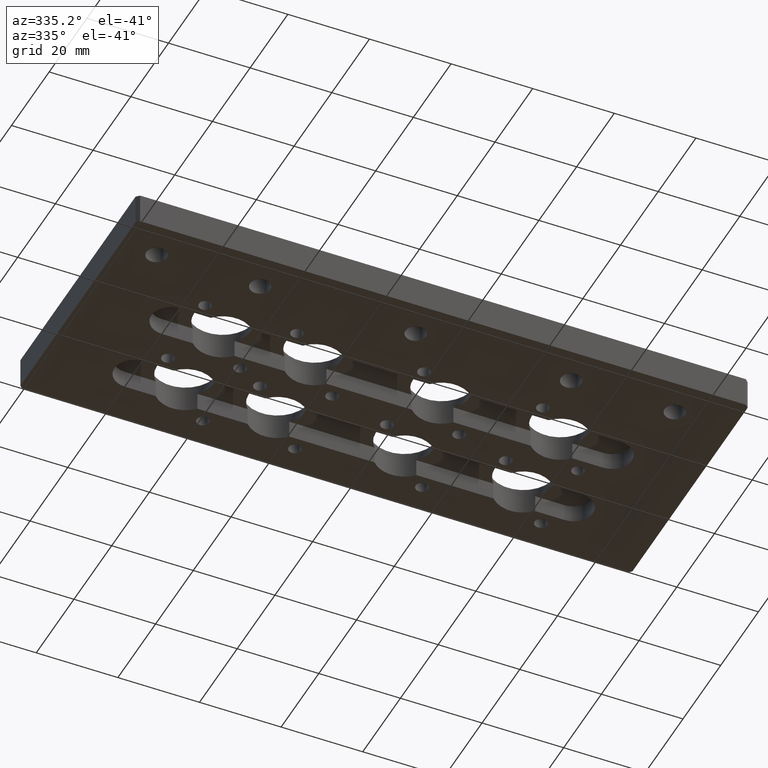
[diagram: clean part render]
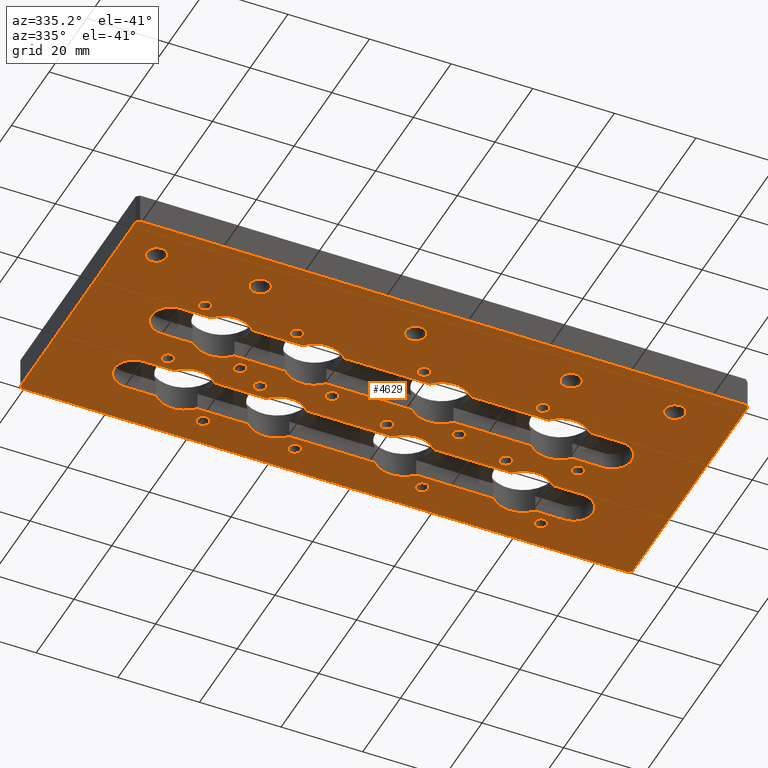
[diagram: same view with one face highlighted and labeled with its STEP entity id]
A machine part, auxiliary view. The second image highlights one B-rep face of the part: STEP entity #4629.
In plain terms, the highlighted planar face has unit normal (0, 0, -1).
Its self-contained STEP definition (entity closure, byte-faithful):
#7 = VERTEX_POINT ( 'NONE', #1036 ) ;
#10 = CARTESIAN_POINT ( 'NONE',  ( 3.190836037894733600, 0.7836737228525875200, -3.414809992080329000E-017 ) ) ;
#17 = DIRECTION ( 'NONE',  ( -1.000000000000000000, 0.0000000000000000000, 0.0000000000000000000 ) ) ;
#18 = CARTESIAN_POINT ( 'NONE',  ( 5.874993993654027400, -2.903011691320257200E-017, 0.0000000000000000000 ) ) ;
#19 = CIRCLE ( 'NONE', #1347, 0.1874999999999996900 ) ;
#38 = VERTEX_POINT ( 'NONE', #5659 ) ;
#44 = DIRECTION ( 'NONE',  ( 1.000000000000000000, -0.0000000000000000000, -0.0000000000000000000 ) ) ;
#45 = VERTEX_POINT ( 'NONE', #6762 ) ;
#60 = VERTEX_POINT ( 'NONE', #7415 ) ;
#67 = FACE_BOUND ( 'NONE', #7017, .T. ) ;
#73 = DIRECTION ( 'NONE',  ( -0.0000000000000000000, -0.0000000000000000000, -1.000000000000000000 ) ) ;
#93 = ORIENTED_EDGE ( 'NONE', *, *, #6428, .T. ) ;
#95 = CIRCLE ( 'NONE', #5367, 0.2749999999999996900 ) ;
#105 = AXIS2_PLACEMENT_3D ( 'NONE', #6625, #3098, #7209 ) ;
#116 = VERTEX_POINT ( 'NONE', #1480 ) ;
#133 = VERTEX_POINT ( 'NONE', #7393 ) ;
#135 = DIRECTION ( 'NONE',  ( 1.000000000000000000, 0.0000000000000000000, 0.0000000000000000000 ) ) ;
#136 = CARTESIAN_POINT ( 'NONE',  ( 4.277975615990304600, 0.7836737228525875200, -3.414809992080329000E-017 ) ) ;
#138 = AXIS2_PLACEMENT_3D ( 'NONE', #6988, #3476, #17 ) ;
#152 = ORIENTED_EDGE ( 'NONE', *, *, #1153, .F. ) ;
#165 = CARTESIAN_POINT ( 'NONE',  ( 0.0000000000000000000, 1.687000000000000300, 0.0000000000000000000 ) ) ;
#170 = ORIENTED_EDGE ( 'NONE', *, *, #7048, .T. ) ;
#176 = EDGE_CURVE ( 'NONE', #3580, #665, #3271, .T. ) ;
#186 = CARTESIAN_POINT ( 'NONE',  ( 1.648860537738787300, 2.190016070075071500, -3.414809992080329000E-017 ) ) ;
#232 = CIRCLE ( 'NONE', #3128, 0.05999999999999990800 ) ;
#239 = DIRECTION ( 'NONE',  ( -1.000000000000000000, 0.0000000000000000000, 0.0000000000000000000 ) ) ;
#244 = AXIS2_PLACEMENT_3D ( 'NONE', #1476, #5581, #2078 ) ;
#251 = CIRCLE ( 'NONE', #7252, 0.09799999999999987900 ) ;
#259 = EDGE_CURVE ( 'NONE', #586, #496, #4483, .T. ) ;
#267 = CARTESIAN_POINT ( 'NONE',  ( 3.244218779278839700, 2.061999999999999800, 0.0000000000000000000 ) ) ;
#274 = EDGE_CURVE ( 'NONE', #6029, #320, #7082, .T. ) ;
#276 = CIRCLE ( 'NONE', #2235, 0.05999999999999990800 ) ;
#278 = DIRECTION ( 'NONE',  ( 1.000000000000000000, 0.0000000000000000000, 0.0000000000000000000 ) ) ;
#296 = CARTESIAN_POINT ( 'NONE',  ( 5.077993993654026800, 2.061999999999999800, 0.0000000000000000000 ) ) ;
#320 = VERTEX_POINT ( 'NONE', #6900 ) ;
#333 = CARTESIAN_POINT ( 'NONE',  ( 0.8361939936540274700, 1.874500000000000300, 0.0000000000000000000 ) ) ;
#334 = AXIS2_PLACEMENT_3D ( 'NONE', #3934, #482, #4532 ) ;
#335 = DIRECTION ( 'NONE',  ( -0.0000000000000000000, -0.0000000000000000000, 1.000000000000000000 ) ) ;
#353 = DIRECTION ( 'NONE',  ( -0.0000000000000000000, -0.0000000000000000000, 1.000000000000000000 ) ) ;
#372 = DIRECTION ( 'NONE',  ( 1.000000000000000000, 0.0000000000000000000, 0.0000000000000000000 ) ) ;
#381 = DIRECTION ( 'NONE',  ( 1.000000000000000000, 0.0000000000000000000, 0.0000000000000000000 ) ) ;
#385 = VERTEX_POINT ( 'NONE', #528 ) ;
#398 = VERTEX_POINT ( 'NONE', #5182 ) ;
#403 = CARTESIAN_POINT ( 'NONE',  ( 4.277975615990304600, 1.559311611733960300, -3.414809992080329000E-017 ) ) ;
#425 = ORIENTED_EDGE ( 'NONE', *, *, #537, .F. ) ;
#426 = DIRECTION ( 'NONE',  ( -1.000000000000000000, 0.0000000000000000000, 0.0000000000000000000 ) ) ;
#439 = CIRCLE ( 'NONE', #5700, 0.2749999999999996900 ) ;
#444 = DIRECTION ( 'NONE',  ( -0.0000000000000000000, -0.0000000000000000000, 1.000000000000000000 ) ) ;
#446 = EDGE_CURVE ( 'NONE', #60, #6122, #2077, .T. ) ;
#462 = CARTESIAN_POINT ( 'NONE',  ( 0.8361939936540274700, 1.874500000000000300, 0.0000000000000000000 ) ) ;
#468 = DIRECTION ( 'NONE',  ( 1.000000000000000000, 0.0000000000000000000, 0.0000000000000000000 ) ) ;
#477 = ORIENTED_EDGE ( 'NONE', *, *, #7004, .F. ) ;
#480 = CARTESIAN_POINT ( 'NONE',  ( 0.0000000000000000000, 1.286189792927657600, 0.0000000000000000000 ) ) ;
#482 = DIRECTION ( 'NONE',  ( -0.0000000000000000000, -0.0000000000000000000, 1.000000000000000000 ) ) ;
#491 = EDGE_CURVE ( 'NONE', #1288, #7394, #3215, .T. ) ;
#496 = VERTEX_POINT ( 'NONE', #1791 ) ;
#503 = DIRECTION ( 'NONE',  ( -1.000000000000000000, 0.0000000000000000000, 0.0000000000000000000 ) ) ;
#519 = CARTESIAN_POINT ( 'NONE',  ( 4.848007759914589000, 1.413705863002730200, -3.414809992080329000E-017 ) ) ;
#528 = CARTESIAN_POINT ( 'NONE',  ( 4.391823226209559100, 1.286189792927657600, 0.0000000000000000000 ) ) ;
#530 = DIRECTION ( 'NONE',  ( -0.0000000000000000000, -0.0000000000000000000, 1.000000000000000000 ) ) ;
#535 = DIRECTION ( 'NONE',  ( -0.0000000000000000000, -0.0000000000000000000, -1.000000000000000000 ) ) ;
#536 = VERTEX_POINT ( 'NONE', #3549 ) ;
#537 = EDGE_CURVE ( 'NONE', #1540, #5656, #2863, .T. ) ;
#538 = LINE ( 'NONE', #7257, #4993 ) ;
#566 = CIRCLE ( 'NONE', #1710, 0.09799999999999987900 ) ;
#573 = VERTEX_POINT ( 'NONE', #5910 ) ;
#575 = CARTESIAN_POINT ( 'NONE',  ( 2.937496996827015900, -2.937496996827012800, -0.0000000000000000000 ) ) ;
#586 = VERTEX_POINT ( 'NONE', #1868 ) ;
#628 = EDGE_CURVE ( 'NONE', #5769, #3286, #3317, .T. ) ;
#659 = ORIENTED_EDGE ( 'NONE', *, *, #5988, .T. ) ;
#665 = VERTEX_POINT ( 'NONE', #3040 ) ;
#667 = CARTESIAN_POINT ( 'NONE',  ( 2.019831193756819000, 1.687000000000000300, 0.0000000000000000000 ) ) ;
#683 = AXIS2_PLACEMENT_3D ( 'NONE', #3812, #353, #4396 ) ;
#695 = ORIENTED_EDGE ( 'NONE', *, *, #2828, .T. ) ;
#697 = CIRCLE ( 'NONE', #1966, 0.05999999999999990800 ) ;
#709 = VERTEX_POINT ( 'NONE', #6039 ) ;
#715 = VECTOR ( 'NONE', #4034, 39.37007874015748100 ) ;
#717 = EDGE_CURVE ( 'NONE', #7111, #6319, #6895, .T. ) ;
#719 = CARTESIAN_POINT ( 'NONE',  ( 0.0000000000000000000, 0.0000000000000000000, 0.0000000000000000000 ) ) ;
#720 = AXIS2_PLACEMENT_3D ( 'NONE', #4386, #919, #5004 ) ;
#726 = DIRECTION ( 'NONE',  ( 1.000000000000000000, 0.0000000000000000000, 0.0000000000000000000 ) ) ;
#745 = CARTESIAN_POINT ( 'NONE',  ( 3.070836037894733500, 1.559311611733960300, -3.414809992080329000E-017 ) ) ;
#752 = ORIENTED_EDGE ( 'NONE', *, *, #1037, .T. ) ;
#763 = DIRECTION ( 'NONE',  ( 1.000000000000000000, 0.0000000000000000000, 0.0000000000000000000 ) ) ;
#773 = VERTEX_POINT ( 'NONE', #1403 ) ;
#775 = EDGE_CURVE ( 'NONE', #995, #38, #2255, .T. ) ;
#778 = LINE ( 'NONE', #3304, #6791 ) ;
#795 = CARTESIAN_POINT ( 'NONE',  ( 1.349999999999999400, 0.3500000000000000900, -3.414809992080329000E-017 ) ) ;
#800 = AXIS2_PLACEMENT_3D ( 'NONE', #5684, #2183, #6263 ) ;
#806 = EDGE_CURVE ( 'NONE', #1220, #1646, #538, .T. ) ;
#816 = EDGE_CURVE ( 'NONE', #2142, #3065, #3596, .T. ) ;
#824 = CARTESIAN_POINT ( 'NONE',  ( 1.905516392343698200, 1.559311611733960300, -3.414809992080329000E-017 ) ) ;
#825 = ORIENTED_EDGE ( 'NONE', *, *, #2868, .F. ) ;
#831 = AXIS2_PLACEMENT_3D ( 'NONE', #6402, #2867, #6970 ) ;
#842 = CARTESIAN_POINT ( 'NONE',  ( 1.132676004033736900, 1.286189792927657600, 0.0000000000000000000 ) ) ;
#854 = CARTESIAN_POINT ( 'NONE',  ( 1.018828393814481500, 0.7836737228525866300, -3.414809992080329000E-017 ) ) ;
#855 = DIRECTION ( 'NONE',  ( -0.0000000000000000000, -0.0000000000000000000, -1.000000000000000000 ) ) ;
#856 = CARTESIAN_POINT ( 'NONE',  ( 3.760868181819018400, 2.189343751884103000, -3.414809992080329000E-017 ) ) ;
#881 = CARTESIAN_POINT ( 'NONE',  ( 5.874993993654023900, 2.465000000000000700, 0.0000000000000000000 ) ) ;
#888 = EDGE_LOOP ( 'NONE', ( #6323, #5812 ) ) ;
#899 = LINE ( 'NONE', #3923, #3796 ) ;
#908 = DIRECTION ( 'NONE',  ( -1.000000000000000000, 0.0000000000000000000, 0.0000000000000000000 ) ) ;
#919 = DIRECTION ( 'NONE',  ( -0.0000000000000000000, -0.0000000000000000000, 1.000000000000000000 ) ) ;
#931 = DIRECTION ( 'NONE',  ( 1.000000000000000000, 0.0000000000000000000, 0.0000000000000000000 ) ) ;
#933 = ORIENTED_EDGE ( 'NONE', *, *, #6282, .T. ) ;
#944 = VERTEX_POINT ( 'NONE', #1368 ) ;
#959 = VERTEX_POINT ( 'NONE', #1972 ) ;
#974 = DIRECTION ( 'NONE',  ( 1.000000000000000000, 0.0000000000000000000, 0.0000000000000000000 ) ) ;
#975 = LINE ( 'NONE', #6199, #3681 ) ;
#993 = LINE ( 'NONE', #4103, #4078 ) ;
#995 = VERTEX_POINT ( 'NONE', #6063 ) ;
#1007 = VERTEX_POINT ( 'NONE', #5483 ) ;
#1011 = CARTESIAN_POINT ( 'NONE',  ( 4.277975615990304600, 0.7836737228525875200, -3.414809992080329000E-017 ) ) ;
#1032 = DIRECTION ( 'NONE',  ( -0.0000000000000000000, -0.0000000000000000000, 1.000000000000000000 ) ) ;
#1033 = DIRECTION ( 'NONE',  ( -1.000000000000000000, 0.0000000000000000000, 0.0000000000000000000 ) ) ;
#1036 = CARTESIAN_POINT ( 'NONE',  ( 4.794625018530524600, 2.061999999999999800, 0.0000000000000000000 ) ) ;
#1037 = EDGE_CURVE ( 'NONE', #665, #3580, #4057, .T. ) ;
#1063 = FACE_BOUND ( 'NONE', #7291, .T. ) ;
#1074 = CARTESIAN_POINT ( 'NONE',  ( 5.904993993654027700, 2.464999999999999900, 0.0000000000000000000 ) ) ;
#1096 = CARTESIAN_POINT ( 'NONE',  ( 0.2519999999999998900, 0.3500000000000000900, -3.414809992080329000E-017 ) ) ;
#1101 = EDGE_LOOP ( 'NONE', ( #3450, #6020 ) ) ;
#1125 = CARTESIAN_POINT ( 'NONE',  ( 3.647485440434953500, 2.061999999999999800, -2.755455298081534300E-017 ) ) ;
#1144 = EDGE_LOOP ( 'NONE', ( #1479, #3771, #425, #7334, #5968, #5664, #7202, #2802, #2816, #5765, #5526, #5371, #1768, #2655, #3411, #3100, #4053, #2668, #6839, #825, #5575 ) ) ;
#1153 = EDGE_CURVE ( 'NONE', #3386, #385, #778, .T. ) ;
#1184 = CARTESIAN_POINT ( 'NONE',  ( 4.908007759914589500, 1.413705863002730200, -3.414809992080329000E-017 ) ) ;
#1189 = CARTESIAN_POINT ( 'NONE',  ( 5.904993993654028600, 0.03000000000000364200, 0.0000000000000000000 ) ) ;
#1191 = EDGE_LOOP ( 'NONE', ( #2443, #5138 ) ) ;
#1195 = EDGE_CURVE ( 'NONE', #5656, #1298, #1973, .T. ) ;
#1206 = CARTESIAN_POINT ( 'NONE',  ( 4.349999999999999600, 0.3500000000000000900, -3.414809992080329000E-017 ) ) ;
#1216 = CARTESIAN_POINT ( 'NONE',  ( 0.8338444657766238600, 1.098689792927657800, 0.0000000000000000000 ) ) ;
#1220 = VERTEX_POINT ( 'NONE', #3415 ) ;
#1230 = LINE ( 'NONE', #5894, #5707 ) ;
#1235 = FACE_BOUND ( 'NONE', #6862, .T. ) ;
#1250 = CIRCLE ( 'NONE', #5622, 0.2749999999999996900 ) ;
#1259 = AXIS2_PLACEMENT_3D ( 'NONE', #5382, #1889, #5955 ) ;
#1262 = LINE ( 'NONE', #2666, #5739 ) ;
#1270 = CARTESIAN_POINT ( 'NONE',  ( 1.078828393814502000, 1.559983929924929000, -3.414809992080329000E-017 ) ) ;
#1271 = PLANE ( 'NONE',  #7005 ) ;
#1277 = DIRECTION ( 'NONE',  ( -0.0000000000000000000, -0.0000000000000000000, 1.000000000000000000 ) ) ;
#1288 = VERTEX_POINT ( 'NONE', #6461 ) ;
#1290 = VERTEX_POINT ( 'NONE', #4722 ) ;
#1295 = DIRECTION ( 'NONE',  ( -1.000000000000000000, 0.0000000000000000000, 0.0000000000000000000 ) ) ;
#1297 = DIRECTION ( 'NONE',  ( -1.000000000000000000, 0.0000000000000000000, -0.0000000000000000000 ) ) ;
#1298 = VERTEX_POINT ( 'NONE', #5890 ) ;
#1309 = EDGE_LOOP ( 'NONE', ( #3547, #1532 ) ) ;
#1338 = VECTOR ( 'NONE', #4132, 39.37007874015748100 ) ;
#1347 = AXIS2_PLACEMENT_3D ( 'NONE', #1216, #5314, #1819 ) ;
#1360 = CIRCLE ( 'NONE', #3396, 0.06000000000000045600 ) ;
#1368 = CARTESIAN_POINT ( 'NONE',  ( 5.252000000000000700, 0.3500000000000000900, -3.414809992080329000E-017 ) ) ;
#1373 = DIRECTION ( 'NONE',  ( 1.000000000000000000, 0.0000000000000000000, 0.0000000000000000000 ) ) ;
#1383 = DIRECTION ( 'NONE',  ( 1.000000000000000000, 0.0000000000000000000, 0.0000000000000000000 ) ) ;
#1393 = DIRECTION ( 'NONE',  ( 1.000000000000000000, 0.0000000000000000000, 0.0000000000000000000 ) ) ;
#1394 = VERTEX_POINT ( 'NONE', #6677 ) ;
#1403 = CARTESIAN_POINT ( 'NONE',  ( 3.245150839307854100, 1.687000000000000300, 0.0000000000000000000 ) ) ;
#1409 = FACE_BOUND ( 'NONE', #2058, .T. ) ;
#1410 = CARTESIAN_POINT ( 'NONE',  ( 3.760868181819018400, 2.189343751884103000, -3.414809992080329000E-017 ) ) ;
#1434 = DIRECTION ( 'NONE',  ( -0.0000000000000000000, -0.0000000000000000000, 1.000000000000000000 ) ) ;
#1436 = DIRECTION ( 'NONE',  ( 1.000000000000000000, 0.0000000000000000000, 0.0000000000000000000 ) ) ;
#1438 = DIRECTION ( 'NONE',  ( 1.000000000000000000, 0.0000000000000000000, 0.0000000000000000000 ) ) ;
#1446 = CARTESIAN_POINT ( 'NONE',  ( 0.8361939936540274700, 2.061999999999999800, 0.0000000000000000000 ) ) ;
#1462 = EDGE_LOOP ( 'NONE', ( #3083, #5822, #2022, #6219, #3797, #5878, #3730, #6061 ) ) ;
#1476 = CARTESIAN_POINT ( 'NONE',  ( 3.130836037894733500, 1.559311611733960300, -3.414809992080329000E-017 ) ) ;
#1479 = ORIENTED_EDGE ( 'NONE', *, *, #4716, .F. ) ;
#1480 = CARTESIAN_POINT ( 'NONE',  ( 2.752000000000000200, 0.3500000000000000900, -3.414809992080329000E-017 ) ) ;
#1532 = ORIENTED_EDGE ( 'NONE', *, *, #3926, .T. ) ;
#1535 = VECTOR ( 'NONE', #7083, 39.37007874015748100 ) ;
#1540 = VERTEX_POINT ( 'NONE', #6751 ) ;
#1555 = VECTOR ( 'NONE', #1295, 39.37007874015748100 ) ;
#1583 = EDGE_CURVE ( 'NONE', #320, #7521, #2251, .T. ) ;
#1588 = DIRECTION ( 'NONE',  ( 1.000000000000000000, 0.0000000000000000000, 0.0000000000000000000 ) ) ;
#1612 = FACE_BOUND ( 'NONE', #1309, .T. ) ;
#1620 = CARTESIAN_POINT ( 'NONE',  ( 3.445852109856876000, 1.098689792927658700, -2.755455298081534300E-017 ) ) ;
#1646 = VERTEX_POINT ( 'NONE', #842 ) ;
#1665 = CARTESIAN_POINT ( 'NONE',  ( 4.337975615990304200, 0.7836737228525875200, -3.414809992080329000E-017 ) ) ;
#1666 = CARTESIAN_POINT ( 'NONE',  ( 2.535548536267982800, 2.189343751884103000, -3.414809992080329000E-017 ) ) ;
#1676 = VERTEX_POINT ( 'NONE', #2047 ) ;
#1685 = AXIS2_PLACEMENT_3D ( 'NONE', #1620, #5699, #2209 ) ;
#1690 = CARTESIAN_POINT ( 'NONE',  ( 3.445852109856896800, 1.875000000000000000, -2.755455298081534300E-017 ) ) ;
#1710 = AXIS2_PLACEMENT_3D ( 'NONE', #1206, #5295, #1803 ) ;
#1716 = EDGE_CURVE ( 'NONE', #944, #4447, #2675, .T. ) ;
#1717 = CIRCLE ( 'NONE', #2194, 0.2749999999999996900 ) ;
#1722 = CARTESIAN_POINT ( 'NONE',  ( 2.535548536267982800, 1.413705863002729000, -3.414809992080329000E-017 ) ) ;
#1731 = VECTOR ( 'NONE', #2227, 39.37007874015748100 ) ;
#1732 = CIRCLE ( 'NONE', #4584, 0.05999999999999990800 ) ;
#1744 = CIRCLE ( 'NONE', #4124, 0.1874999999999995800 ) ;
#1749 = DIRECTION ( 'NONE',  ( -1.000000000000000000, 0.0000000000000000000, 0.0000000000000000000 ) ) ;
#1750 = EDGE_CURVE ( 'NONE', #2743, #709, #3675, .T. ) ;
#1755 = ORIENTED_EDGE ( 'NONE', *, *, #6440, .T. ) ;
#1768 = ORIENTED_EDGE ( 'NONE', *, *, #7181, .F. ) ;
#1777 = VERTEX_POINT ( 'NONE', #5109 ) ;
#1782 = DIRECTION ( 'NONE',  ( 1.000000000000000000, 0.0000000000000000000, 0.0000000000000000000 ) ) ;
#1783 = DIRECTION ( 'NONE',  ( -0.0000000000000000000, -0.0000000000000000000, -1.000000000000000000 ) ) ;
#1791 = CARTESIAN_POINT ( 'NONE',  ( 4.391823226209559100, 0.9111897929276581200, 0.0000000000000000000 ) ) ;
#1795 = VECTOR ( 'NONE', #6111, 39.37007874015748100 ) ;
#1796 = EDGE_CURVE ( 'NONE', #3078, #1540, #7065, .T. ) ;
#1803 = DIRECTION ( 'NONE',  ( 1.000000000000000000, 0.0000000000000000000, 0.0000000000000000000 ) ) ;
#1811 = AXIS2_PLACEMENT_3D ( 'NONE', #7335, #3835, #381 ) ;
#1816 = CARTESIAN_POINT ( 'NONE',  ( 5.077993993654026800, 1.687000000000000300, 0.0000000000000000000 ) ) ;
#1819 = DIRECTION ( 'NONE',  ( -1.000000000000000000, 0.0000000000000000000, 0.0000000000000000000 ) ) ;
#1826 = DIRECTION ( 'NONE',  ( 1.000000000000000000, 0.0000000000000000000, 0.0000000000000000000 ) ) ;
#1843 = VERTEX_POINT ( 'NONE', #1665 ) ;
#1846 = CARTESIAN_POINT ( 'NONE',  ( 2.475548536267983200, 1.413705863002729000, -3.414809992080329000E-017 ) ) ;
#1856 = EDGE_CURVE ( 'NONE', #5474, #3130, #697, .T. ) ;
#1857 = CARTESIAN_POINT ( 'NONE',  ( 5.092991687952446600, 0.9111897929276581200, 0.0000000000000000000 ) ) ;
#1868 = CARTESIAN_POINT ( 'NONE',  ( 4.794160149695335000, 0.9111897929276581200, 0.0000000000000000000 ) ) ;
#1879 = CARTESIAN_POINT ( 'NONE',  ( 1.845516392343698400, 1.559311611733960300, -3.414809992080329000E-017 ) ) ;
#1882 = VERTEX_POINT ( 'NONE', #6957 ) ;
#1889 = DIRECTION ( 'NONE',  ( -0.0000000000000000000, -0.0000000000000000000, -1.000000000000000000 ) ) ;
#1902 = LINE ( 'NONE', #6254, #6544 ) ;
#1911 = AXIS2_PLACEMENT_3D ( 'NONE', #333, #4380, #908 ) ;
#1916 = CARTESIAN_POINT ( 'NONE',  ( 4.592991687952446600, 1.098689792927657800, -2.755455298081534300E-017 ) ) ;
#1923 = VERTEX_POINT ( 'NONE', #4638 ) ;
#1949 = CARTESIAN_POINT ( 'NONE',  ( 2.421700926048730100, 0.9111897929276581200, 0.0000000000000000000 ) ) ;
#1965 = VERTEX_POINT ( 'NONE', #3618 ) ;
#1966 = AXIS2_PLACEMENT_3D ( 'NONE', #1722, #5791, #2295 ) ;
#1970 = VERTEX_POINT ( 'NONE', #2452 ) ;
#1972 = CARTESIAN_POINT ( 'NONE',  ( 5.092991687952446600, 0.9111897929276581200, 0.0000000000000000000 ) ) ;
#1973 = CIRCLE ( 'NONE', #7217, 0.2749999999999996900 ) ;
#1980 = VERTEX_POINT ( 'NONE', #745 ) ;
#1981 = AXIS2_PLACEMENT_3D ( 'NONE', #5725, #2230, #6320 ) ;
#1991 = LINE ( 'NONE', #165, #6459 ) ;
#2022 = ORIENTED_EDGE ( 'NONE', *, *, #717, .T. ) ;
#2038 = AXIS2_PLACEMENT_3D ( 'NONE', #7110, #3601, #135 ) ;
#2047 = CARTESIAN_POINT ( 'NONE',  ( 4.337975615990304200, 1.559311611733960300, -3.414809992080329000E-017 ) ) ;
#2058 = EDGE_LOOP ( 'NONE', ( #4259, #6664 ) ) ;
#2077 = CIRCLE ( 'NONE', #2174, 0.05999999999999990800 ) ;
#2078 = DIRECTION ( 'NONE',  ( 1.000000000000000000, 0.0000000000000000000, 0.0000000000000000000 ) ) ;
#2101 = DIRECTION ( 'NONE',  ( 0.0000000000000000000, 1.000000000000000000, 0.0000000000000000000 ) ) ;
#2104 = ORIENTED_EDGE ( 'NONE', *, *, #6959, .T. ) ;
#2109 = AXIS2_PLACEMENT_3D ( 'NONE', #6750, #3220, #7321 ) ;
#2110 = ORIENTED_EDGE ( 'NONE', *, *, #2354, .T. ) ;
#2130 = EDGE_CURVE ( 'NONE', #4460, #6321, #232, .T. ) ;
#2131 = ORIENTED_EDGE ( 'NONE', *, *, #2130, .T. ) ;
#2142 = VERTEX_POINT ( 'NONE', #7292 ) ;
#2150 = CARTESIAN_POINT ( 'NONE',  ( 5.092991687952446600, 1.098689792927657800, 0.0000000000000000000 ) ) ;
#2160 = CARTESIAN_POINT ( 'NONE',  ( 3.070836037894733500, 0.7836737228525875200, -3.414809992080329000E-017 ) ) ;
#2174 = AXIS2_PLACEMENT_3D ( 'NONE', #2899, #6998, #3494 ) ;
#2183 = DIRECTION ( 'NONE',  ( -0.0000000000000000000, -0.0000000000000000000, 1.000000000000000000 ) ) ;
#2194 = AXIS2_PLACEMENT_3D ( 'NONE', #3989, #535, #4591 ) ;
#2201 = EDGE_LOOP ( 'NONE', ( #7033, #3491 ) ) ;
#2209 = DIRECTION ( 'NONE',  ( -1.000000000000000000, 0.0000000000000000000, 0.0000000000000000000 ) ) ;
#2220 = DIRECTION ( 'NONE',  ( 0.0000000000000000000, 0.0000000000000000000, -1.000000000000000000 ) ) ;
#2226 = DIRECTION ( 'NONE',  ( -0.0000000000000000000, -0.0000000000000000000, -1.000000000000000000 ) ) ;
#2227 = DIRECTION ( 'NONE',  ( -1.000000000000000000, 0.0000000000000000000, 0.0000000000000000000 ) ) ;
#2230 = DIRECTION ( 'NONE',  ( -0.0000000000000000000, -0.0000000000000000000, -1.000000000000000000 ) ) ;
#2235 = AXIS2_PLACEMENT_3D ( 'NONE', #1011, #5092, #1588 ) ;
#2239 = VERTEX_POINT ( 'NONE', #4475 ) ;
#2248 = DIRECTION ( 'NONE',  ( 1.000000000000000000, 0.0000000000000000000, 0.0000000000000000000 ) ) ;
#2251 = CIRCLE ( 'NONE', #6154, 0.2749999999999996900 ) ;
#2255 = CIRCLE ( 'NONE', #6357, 0.05999999999999990800 ) ;
#2268 = DIRECTION ( 'NONE',  ( -1.000000000000000000, 0.0000000000000000000, 0.0000000000000000000 ) ) ;
#2295 = DIRECTION ( 'NONE',  ( 1.000000000000000000, 0.0000000000000000000, 0.0000000000000000000 ) ) ;
#2330 = CIRCLE ( 'NONE', #6731, 0.05999999999999990800 ) ;
#2347 = EDGE_CURVE ( 'NONE', #6319, #7471, #6374, .T. ) ;
#2352 = CARTESIAN_POINT ( 'NONE',  ( 4.968007759914590000, 1.413705863002730200, -3.414809992080329000E-017 ) ) ;
#2354 = EDGE_CURVE ( 'NONE', #6083, #2918, #1732, .T. ) ;
#2358 = VERTEX_POINT ( 'NONE', #6081 ) ;
#2372 = CIRCLE ( 'NONE', #4474, 0.2749999999999996900 ) ;
#2375 = VERTEX_POINT ( 'NONE', #7293 ) ;
#2386 = DIRECTION ( 'NONE',  ( 1.000000000000000000, 0.0000000000000000000, 0.0000000000000000000 ) ) ;
#2410 = DIRECTION ( 'NONE',  ( -0.0000000000000000000, -0.0000000000000000000, 1.000000000000000000 ) ) ;
#2431 = CIRCLE ( 'NONE', #6725, 0.05999999999999990800 ) ;
#2440 = CIRCLE ( 'NONE', #244, 0.05999999999999990800 ) ;
#2443 = ORIENTED_EDGE ( 'NONE', *, *, #7383, .T. ) ;
#2447 = ORIENTED_EDGE ( 'NONE', *, *, #3424, .F. ) ;
#2452 = CARTESIAN_POINT ( 'NONE',  ( 1.132676004033736900, 0.9111897929276581200, 0.0000000000000000000 ) ) ;
#2456 = ORIENTED_EDGE ( 'NONE', *, *, #259, .F. ) ;
#2460 = CARTESIAN_POINT ( 'NONE',  ( 5.092991687952446600, 1.286189792927657600, 0.0000000000000000000 ) ) ;
#2469 = EDGE_CURVE ( 'NONE', #2892, #1288, #3326, .T. ) ;
#2471 = AXIS2_PLACEMENT_3D ( 'NONE', #3301, #7399, #3902 ) ;
#2478 = DIRECTION ( 'NONE',  ( -1.000000000000000000, 0.0000000000000000000, 0.0000000000000000000 ) ) ;
#2481 = DIRECTION ( 'NONE',  ( 0.7071067811865410200, 0.7071067811865539000, -0.0000000000000000000 ) ) ;
#2492 = EDGE_LOOP ( 'NONE', ( #2548, #752 ) ) ;
#2495 = CARTESIAN_POINT ( 'NONE',  ( 4.908007759914589500, 1.413705863002730200, -3.414809992080329000E-017 ) ) ;
#2513 = CIRCLE ( 'NONE', #6252, 0.05999999999999990800 ) ;
#2514 = CARTESIAN_POINT ( 'NONE',  ( 1.018828393814502200, 1.559983929924929000, -3.414809992080329000E-017 ) ) ;
#2518 = AXIS2_PLACEMENT_3D ( 'NONE', #6299, #2771, #6872 ) ;
#2529 = DIRECTION ( 'NONE',  ( -0.0000000000000000000, -0.0000000000000000000, 1.000000000000000000 ) ) ;
#2538 = LINE ( 'NONE', #4787, #1555 ) ;
#2548 = ORIENTED_EDGE ( 'NONE', *, *, #176, .T. ) ;
#2574 = ORIENTED_EDGE ( 'NONE', *, *, #1583, .F. ) ;
#2579 = EDGE_CURVE ( 'NONE', #1646, #6029, #1250, .T. ) ;
#2583 = CIRCLE ( 'NONE', #3428, 0.2749999999999996900 ) ;
#2585 = FACE_BOUND ( 'NONE', #1101, .T. ) ;
#2587 = CARTESIAN_POINT ( 'NONE',  ( 3.820868181819018000, 2.189343751884103000, -3.414809992080329000E-017 ) ) ;
#2649 = AXIS2_PLACEMENT_3D ( 'NONE', #1666, #5735, #2248 ) ;
#2655 = ORIENTED_EDGE ( 'NONE', *, *, #816, .F. ) ;
#2657 = CARTESIAN_POINT ( 'NONE',  ( 4.391358357374411300, 2.061999999999999800, 0.0000000000000000000 ) ) ;
#2666 = CARTESIAN_POINT ( 'NONE',  ( 0.0000000000000000000, 2.061999999999999800, 0.0000000000000000000 ) ) ;
#2668 = ORIENTED_EDGE ( 'NONE', *, *, #3312, .F. ) ;
#2675 = CIRCLE ( 'NONE', #2109, 0.09799999999999987900 ) ;
#2682 = EDGE_CURVE ( 'NONE', #709, #5280, #1902, .T. ) ;
#2685 = AXIS2_PLACEMENT_3D ( 'NONE', #1410, #6405, #7480 ) ;
#2694 = VERTEX_POINT ( 'NONE', #5679 ) ;
#2716 = DIRECTION ( 'NONE',  ( -1.000000000000000000, 0.0000000000000000000, 0.0000000000000000000 ) ) ;
#2731 = ORIENTED_EDGE ( 'NONE', *, *, #806, .F. ) ;
#2733 = CARTESIAN_POINT ( 'NONE',  ( 2.595548536267982900, 1.413705863002729000, -3.414809992080329000E-017 ) ) ;
#2743 = VERTEX_POINT ( 'NONE', #18 ) ;
#2752 = DIRECTION ( 'NONE',  ( -0.0000000000000000000, -0.0000000000000000000, -1.000000000000000000 ) ) ;
#2766 = CIRCLE ( 'NONE', #2649, 0.05999999999999990800 ) ;
#2769 = FACE_BOUND ( 'NONE', #2492, .T. ) ;
#2771 = DIRECTION ( 'NONE',  ( -0.0000000000000000000, -0.0000000000000000000, 1.000000000000000000 ) ) ;
#2801 = EDGE_LOOP ( 'NONE', ( #2131, #933 ) ) ;
#2802 = ORIENTED_EDGE ( 'NONE', *, *, #628, .F. ) ;
#2806 = VERTEX_POINT ( 'NONE', #5897 ) ;
#2809 = CARTESIAN_POINT ( 'NONE',  ( 1.648860537738787300, 2.190016070075071500, -3.414809992080329000E-017 ) ) ;
#2816 = ORIENTED_EDGE ( 'NONE', *, *, #3118, .F. ) ;
#2825 = CARTESIAN_POINT ( 'NONE',  ( 3.244683648113987100, 1.286189792927657600, 0.0000000000000000000 ) ) ;
#2828 = EDGE_CURVE ( 'NONE', #6809, #7314, #2513, .T. ) ;
#2863 = LINE ( 'NONE', #1816, #1338 ) ;
#2867 = DIRECTION ( 'NONE',  ( -0.0000000000000000000, -0.0000000000000000000, 1.000000000000000000 ) ) ;
#2868 = EDGE_CURVE ( 'NONE', #773, #133, #1991, .T. ) ;
#2876 = CARTESIAN_POINT ( 'NONE',  ( 1.708860537738766400, 1.413705863002729000, -3.414809992080329000E-017 ) ) ;
#2883 = CIRCLE ( 'NONE', #5223, 0.05999999999999990800 ) ;
#2892 = VERTEX_POINT ( 'NONE', #1949 ) ;
#2894 = VECTOR ( 'NONE', #2386, 39.37007874015748100 ) ;
#2899 = CARTESIAN_POINT ( 'NONE',  ( 1.018828393814502200, 1.559983929924929000, -3.414809992080329000E-017 ) ) ;
#2918 = VERTEX_POINT ( 'NONE', #1879 ) ;
#2939 = FACE_BOUND ( 'NONE', #3594, .T. ) ;
#2960 = VECTOR ( 'NONE', #2101, 39.37007874015748100 ) ;
#2964 = ORIENTED_EDGE ( 'NONE', *, *, #6953, .T. ) ;
#2977 = EDGE_CURVE ( 'NONE', #573, #3011, #251, .T. ) ;
#2999 = VERTEX_POINT ( 'NONE', #6600 ) ;
#3005 = EDGE_CURVE ( 'NONE', #4557, #2806, #4150, .T. ) ;
#3011 = VERTEX_POINT ( 'NONE', #5464 ) ;
#3019 = AXIS2_PLACEMENT_3D ( 'NONE', #3985, #530, #4589 ) ;
#3022 = DIRECTION ( 'NONE',  ( -1.000000000000000000, 0.0000000000000000000, 0.0000000000000000000 ) ) ;
#3031 = VECTOR ( 'NONE', #5738, 39.37007874015748100 ) ;
#3032 = AXIS2_PLACEMENT_3D ( 'NONE', #854, #4951, #1436 ) ;
#3040 = CARTESIAN_POINT ( 'NONE',  ( 3.700868181819018300, 2.189343751884103000, -3.414809992080329000E-017 ) ) ;
#3058 = LINE ( 'NONE', #1857, #1535 ) ;
#3061 = DIRECTION ( 'NONE',  ( 1.000000000000000000, 0.0000000000000000000, 0.0000000000000000000 ) ) ;
#3065 = VERTEX_POINT ( 'NONE', #1446 ) ;
#3078 = VERTEX_POINT ( 'NONE', #296 ) ;
#3080 = DIRECTION ( 'NONE',  ( 1.000000000000000000, 0.0000000000000000000, 0.0000000000000000000 ) ) ;
#3083 = ORIENTED_EDGE ( 'NONE', *, *, #4250, .T. ) ;
#3098 = DIRECTION ( 'NONE',  ( -0.0000000000000000000, -0.0000000000000000000, 1.000000000000000000 ) ) ;
#3100 = ORIENTED_EDGE ( 'NONE', *, *, #7526, .F. ) ;
#3102 = VERTEX_POINT ( 'NONE', #2657 ) ;
#3108 = EDGE_CURVE ( 'NONE', #1676, #4207, #2330, .T. ) ;
#3118 = EDGE_CURVE ( 'NONE', #2375, #5769, #975, .T. ) ;
#3120 = FACE_BOUND ( 'NONE', #888, .T. ) ;
#3128 = AXIS2_PLACEMENT_3D ( 'NONE', #3790, #335, #4382 ) ;
#3130 = VERTEX_POINT ( 'NONE', #2733 ) ;
#3134 = AXIS2_PLACEMENT_3D ( 'NONE', #5279, #1783, #5861 ) ;
#3149 = CIRCLE ( 'NONE', #3770, 0.1874999999999998300 ) ;
#3151 = VERTEX_POINT ( 'NONE', #6246 ) ;
#3156 = CARTESIAN_POINT ( 'NONE',  ( 3.646553380405939100, 1.687000000000000300, 0.0000000000000000000 ) ) ;
#3193 = VECTOR ( 'NONE', #4903, 39.37007874015748100 ) ;
#3195 = EDGE_CURVE ( 'NONE', #5310, #7546, #5893, .T. ) ;
#3203 = EDGE_LOOP ( 'NONE', ( #6685, #7489 ) ) ;
#3215 = LINE ( 'NONE', #6425, #4809 ) ;
#3220 = DIRECTION ( 'NONE',  ( -0.0000000000000000000, -0.0000000000000000000, 1.000000000000000000 ) ) ;
#3224 = EDGE_CURVE ( 'NONE', #2999, #1923, #2766, .T. ) ;
#3233 = CARTESIAN_POINT ( 'NONE',  ( 4.349999999999999600, 0.3500000000000000900, -3.414809992080329000E-017 ) ) ;
#3234 = VECTOR ( 'NONE', #6342, 39.37007874015748100 ) ;
#3249 = EDGE_CURVE ( 'NONE', #2358, #116, #4141, .T. ) ;
#3253 = EDGE_CURVE ( 'NONE', #3584, #773, #2583, .T. ) ;
#3255 = LINE ( 'NONE', #4717, #2894 ) ;
#3257 = ORIENTED_EDGE ( 'NONE', *, *, #5020, .F. ) ;
#3271 = CIRCLE ( 'NONE', #2685, 0.05999999999999990800 ) ;
#3286 = VERTEX_POINT ( 'NONE', #1125 ) ;
#3291 = CARTESIAN_POINT ( 'NONE',  ( 2.018899133727804600, 2.061999999999999800, 0.0000000000000000000 ) ) ;
#3294 = VERTEX_POINT ( 'NONE', #4640 ) ;
#3301 = CARTESIAN_POINT ( 'NONE',  ( 2.220532464305840400, 1.098689792927657800, -2.755455298081534300E-017 ) ) ;
#3304 = CARTESIAN_POINT ( 'NONE',  ( 0.0000000000000000000, 1.286189792927657600, 0.0000000000000000000 ) ) ;
#3312 = EDGE_CURVE ( 'NONE', #6591, #3151, #5585, .T. ) ;
#3317 = CIRCLE ( 'NONE', #1259, 0.2749999999999996900 ) ;
#3326 = CIRCLE ( 'NONE', #2471, 0.2749999999999996900 ) ;
#3329 = AXIS2_PLACEMENT_3D ( 'NONE', #6960, #3449, #7536 ) ;
#3346 = CARTESIAN_POINT ( 'NONE',  ( 1.648860537738766400, 1.413705863002729000, -3.414809992080329000E-017 ) ) ;
#3371 = EDGE_CURVE ( 'NONE', #5798, #1882, #19, .T. ) ;
#3376 = EDGE_CURVE ( 'NONE', #2694, #4962, #3255, .T. ) ;
#3386 = VERTEX_POINT ( 'NONE', #7049 ) ;
#3387 = DIRECTION ( 'NONE',  ( -0.0000000000000000000, -0.0000000000000000000, 1.000000000000000000 ) ) ;
#3396 = AXIS2_PLACEMENT_3D ( 'NONE', #2495, #6589, #3061 ) ;
#3401 = CIRCLE ( 'NONE', #5171, 0.1874999999999996900 ) ;
#3403 = DIRECTION ( 'NONE',  ( 1.000000000000000000, 0.0000000000000000000, 0.0000000000000000000 ) ) ;
#3407 = CARTESIAN_POINT ( 'NONE',  ( 0.0000000000000000000, 0.9111897929276581200, 0.0000000000000000000 ) ) ;
#3411 = ORIENTED_EDGE ( 'NONE', *, *, #3749, .F. ) ;
#3415 = CARTESIAN_POINT ( 'NONE',  ( 0.8338444657766238600, 1.286189792927657600, 0.0000000000000000000 ) ) ;
#3424 = EDGE_CURVE ( 'NONE', #1777, #2892, #2538, .T. ) ;
#3428 = AXIS2_PLACEMENT_3D ( 'NONE', #1690, #5771, #2268 ) ;
#3429 = CARTESIAN_POINT ( 'NONE',  ( 3.130836037894733500, 0.7836737228525875200, -3.414809992080329000E-017 ) ) ;
#3430 = CIRCLE ( 'NONE', #3032, 0.05999999999999990800 ) ;
#3449 = DIRECTION ( 'NONE',  ( -0.0000000000000000000, -0.0000000000000000000, 1.000000000000000000 ) ) ;
#3450 = ORIENTED_EDGE ( 'NONE', *, *, #3714, .T. ) ;
#3462 = EDGE_CURVE ( 'NONE', #385, #2694, #2372, .T. ) ;
#3476 = DIRECTION ( 'NONE',  ( -0.0000000000000000000, -0.0000000000000000000, -1.000000000000000000 ) ) ;
#3488 = ORIENTED_EDGE ( 'NONE', *, *, #4865, .F. ) ;
#3491 = ORIENTED_EDGE ( 'NONE', *, *, #4685, .T. ) ;
#3494 = DIRECTION ( 'NONE',  ( 1.000000000000000000, 0.0000000000000000000, 0.0000000000000000000 ) ) ;
#3510 = ORIENTED_EDGE ( 'NONE', *, *, #2469, .F. ) ;
#3542 = CARTESIAN_POINT ( 'NONE',  ( 1.333844465776644600, 1.875000000000000000, -2.755455298081534300E-017 ) ) ;
#3547 = ORIENTED_EDGE ( 'NONE', *, *, #7424, .T. ) ;
#3549 = CARTESIAN_POINT ( 'NONE',  ( 4.251999999999999800, 0.3500000000000000900, -3.414809992080329000E-017 ) ) ;
#3580 = VERTEX_POINT ( 'NONE', #2587 ) ;
#3584 = VERTEX_POINT ( 'NONE', #3156 ) ;
#3594 = EDGE_LOOP ( 'NONE', ( #2110, #7509 ) ) ;
#3596 = CIRCLE ( 'NONE', #1911, 0.1874999999999998300 ) ;
#3601 = DIRECTION ( 'NONE',  ( -0.0000000000000000000, -0.0000000000000000000, 1.000000000000000000 ) ) ;
#3618 = CARTESIAN_POINT ( 'NONE',  ( 4.217975615990305000, 0.7836737228525875200, -3.414809992080329000E-017 ) ) ;
#3619 = CIRCLE ( 'NONE', #4934, 0.05999999999999990800 ) ;
#3623 = EDGE_CURVE ( 'NONE', #2239, #1980, #5669, .T. ) ;
#3624 = ORIENTED_EDGE ( 'NONE', *, *, #4457, .T. ) ;
#3631 = AXIS2_PLACEMENT_3D ( 'NONE', #5920, #2410, #6510 ) ;
#3637 = ORIENTED_EDGE ( 'NONE', *, *, #3623, .T. ) ;
#3665 = CIRCLE ( 'NONE', #720, 0.09799999999999987900 ) ;
#3675 = LINE ( 'NONE', #3849, #5259 ) ;
#3676 = LINE ( 'NONE', #6062, #6980 ) ;
#3681 = VECTOR ( 'NONE', #372, 39.37007874015748100 ) ;
#3698 = DIRECTION ( 'NONE',  ( 0.0000000000000000000, 0.0000000000000000000, -1.000000000000000000 ) ) ;
#3714 = EDGE_CURVE ( 'NONE', #1843, #1965, #276, .T. ) ;
#3715 = AXIS2_PLACEMENT_3D ( 'NONE', #6045, #2529, #6623 ) ;
#3730 = ORIENTED_EDGE ( 'NONE', *, *, #1750, .T. ) ;
#3739 = DIRECTION ( 'NONE',  ( -0.0000000000000000000, -0.0000000000000000000, 1.000000000000000000 ) ) ;
#3742 = DIRECTION ( 'NONE',  ( 0.7071067811865474600, -0.7071067811865474600, -0.0000000000000000000 ) ) ;
#3749 = EDGE_CURVE ( 'NONE', #5214, #2142, #3149, .T. ) ;
#3761 = DIRECTION ( 'NONE',  ( 1.000000000000000000, -0.0000000000000000000, -0.0000000000000000000 ) ) ;
#3767 = EDGE_CURVE ( 'NONE', #7481, #2375, #95, .T. ) ;
#3770 = AXIS2_PLACEMENT_3D ( 'NONE', #462, #4512, #1033 ) ;
#3771 = ORIENTED_EDGE ( 'NONE', *, *, #1195, .F. ) ;
#3790 = CARTESIAN_POINT ( 'NONE',  ( 1.018828393814481500, 0.7836737228525866300, -3.414809992080329000E-017 ) ) ;
#3796 = VECTOR ( 'NONE', #468, 39.37007874015748100 ) ;
#3797 = ORIENTED_EDGE ( 'NONE', *, *, #4397, .T. ) ;
#3812 = CARTESIAN_POINT ( 'NONE',  ( 3.130836037894733500, 1.559311611733960300, -3.414809992080329000E-017 ) ) ;
#3816 = EDGE_LOOP ( 'NONE', ( #695, #4793 ) ) ;
#3820 = VERTEX_POINT ( 'NONE', #6909 ) ;
#3835 = DIRECTION ( 'NONE',  ( -0.0000000000000000000, -0.0000000000000000000, 1.000000000000000000 ) ) ;
#3837 = DIRECTION ( 'NONE',  ( 1.000000000000000000, 0.0000000000000000000, 0.0000000000000000000 ) ) ;
#3849 = CARTESIAN_POINT ( 'NONE',  ( 5.904993993654027700, -2.932811640247411800E-017, -0.0000000000000000000 ) ) ;
#3858 = CIRCLE ( 'NONE', #3715, 0.05999999999999990800 ) ;
#3860 = EDGE_LOOP ( 'NONE', ( #3637, #5429 ) ) ;
#3882 = CARTESIAN_POINT ( 'NONE',  ( 0.8361939936540274700, 1.687000000000000300, 0.0000000000000000000 ) ) ;
#3884 = DIRECTION ( 'NONE',  ( -0.0000000000000000000, -0.0000000000000000000, -1.000000000000000000 ) ) ;
#3894 = ORIENTED_EDGE ( 'NONE', *, *, #3108, .T. ) ;
#3896 = CARTESIAN_POINT ( 'NONE',  ( 3.130836037894733500, 0.7836737228525875200, -3.414809992080329000E-017 ) ) ;
#3902 = DIRECTION ( 'NONE',  ( -1.000000000000000000, 0.0000000000000000000, 0.0000000000000000000 ) ) ;
#3911 = EDGE_CURVE ( 'NONE', #1007, #45, #5203, .T. ) ;
#3923 = CARTESIAN_POINT ( 'NONE',  ( 0.0000000000000000000, 2.061999999999999800, 0.0000000000000000000 ) ) ;
#3924 = ORIENTED_EDGE ( 'NONE', *, *, #1716, .T. ) ;
#3926 = EDGE_CURVE ( 'NONE', #536, #1394, #566, .T. ) ;
#3934 = CARTESIAN_POINT ( 'NONE',  ( 0.3499999999999998100, 0.3500000000000000900, -3.414809992080329000E-017 ) ) ;
#3940 = DIRECTION ( 'NONE',  ( 1.000000000000000000, 0.0000000000000000000, 0.0000000000000000000 ) ) ;
#3943 = ORIENTED_EDGE ( 'NONE', *, *, #7491, .F. ) ;
#3950 = DIRECTION ( 'NONE',  ( -0.0000000000000000000, -0.0000000000000000000, -1.000000000000000000 ) ) ;
#3960 = FACE_OUTER_BOUND ( 'NONE', #1462, .T. ) ;
#3967 = CARTESIAN_POINT ( 'NONE',  ( 0.4479999999999997900, 0.3500000000000000900, -3.414809992080329000E-017 ) ) ;
#3985 = CARTESIAN_POINT ( 'NONE',  ( 2.850000000000000100, 0.3500000000000000900, -3.414809992080329000E-017 ) ) ;
#3989 = CARTESIAN_POINT ( 'NONE',  ( 3.445852109856876000, 1.098689792927658700, -2.755455298081534300E-017 ) ) ;
#3993 = ORIENTED_EDGE ( 'NONE', *, *, #5639, .T. ) ;
#4007 = EDGE_CURVE ( 'NONE', #4447, #944, #6200, .T. ) ;
#4008 = VECTOR ( 'NONE', #1749, 39.37007874015748100 ) ;
#4017 = EDGE_CURVE ( 'NONE', #959, #586, #3058, .T. ) ;
#4020 = CARTESIAN_POINT ( 'NONE',  ( 5.448000000000000400, 0.3500000000000000900, -3.414809992080329000E-017 ) ) ;
#4029 = DIRECTION ( 'NONE',  ( 1.000000000000000000, 0.0000000000000000000, 0.0000000000000000000 ) ) ;
#4034 = DIRECTION ( 'NONE',  ( -0.7071067811865472400, -0.7071067811865479100, -0.0000000000000000000 ) ) ;
#4035 = EDGE_CURVE ( 'NONE', #1965, #1843, #2883, .T. ) ;
#4044 = ORIENTED_EDGE ( 'NONE', *, *, #2579, .F. ) ;
#4053 = ORIENTED_EDGE ( 'NONE', *, *, #6568, .F. ) ;
#4057 = CIRCLE ( 'NONE', #6206, 0.05999999999999990800 ) ;
#4078 = VECTOR ( 'NONE', #44, 39.37007874015748100 ) ;
#4103 = CARTESIAN_POINT ( 'NONE',  ( 5.077993993654026800, 2.061999999999999800, 0.0000000000000000000 ) ) ;
#4113 = EDGE_CURVE ( 'NONE', #2918, #6083, #5293, .T. ) ;
#4124 = AXIS2_PLACEMENT_3D ( 'NONE', #2150, #6232, #2716 ) ;
#4125 = DIRECTION ( 'NONE',  ( -1.000000000000000000, 0.0000000000000000000, 0.0000000000000000000 ) ) ;
#4132 = DIRECTION ( 'NONE',  ( -1.000000000000000000, 0.0000000000000000000, 0.0000000000000000000 ) ) ;
#4137 = CIRCLE ( 'NONE', #2038, 0.05999999999999990800 ) ;
#4141 = CIRCLE ( 'NONE', #3019, 0.09799999999999987900 ) ;
#4146 = FACE_BOUND ( 'NONE', #3816, .T. ) ;
#4150 = CIRCLE ( 'NONE', #105, 0.06000000000000045600 ) ;
#4163 = CIRCLE ( 'NONE', #6399, 0.06000000000000045600 ) ;
#4201 = DIRECTION ( 'NONE',  ( -0.0000000000000000000, -0.0000000000000000000, 1.000000000000000000 ) ) ;
#4207 = VERTEX_POINT ( 'NONE', #5573 ) ;
#4240 = DIRECTION ( 'NONE',  ( -0.0000000000000000000, -0.0000000000000000000, 1.000000000000000000 ) ) ;
#4250 = EDGE_CURVE ( 'NONE', #5280, #398, #6095, .T. ) ;
#4257 = ORIENTED_EDGE ( 'NONE', *, *, #2977, .T. ) ;
#4259 = ORIENTED_EDGE ( 'NONE', *, *, #6517, .T. ) ;
#4288 = CARTESIAN_POINT ( 'NONE',  ( 0.0000000000000000000, 0.9111897929276581200, 0.0000000000000000000 ) ) ;
#4298 = CARTESIAN_POINT ( 'NONE',  ( 3.820868181819018000, 1.413705863002730200, -3.414809992080329000E-017 ) ) ;
#4318 = FACE_BOUND ( 'NONE', #3860, .T. ) ;
#4320 = AXIS2_PLACEMENT_3D ( 'NONE', #3542, #73, #4125 ) ;
#4329 = CARTESIAN_POINT ( 'NONE',  ( 2.220532464305861300, 1.875000000000000000, -2.755455298081534300E-017 ) ) ;
#4337 = CIRCLE ( 'NONE', #5732, 0.09799999999999987900 ) ;
#4341 = CARTESIAN_POINT ( 'NONE',  ( 0.8338444657766238600, 0.9111897929276581200, 0.0000000000000000000 ) ) ;
#4359 = EDGE_LOOP ( 'NONE', ( #170, #2964 ) ) ;
#4372 = EDGE_LOOP ( 'NONE', ( #4257, #2104 ) ) ;
#4380 = DIRECTION ( 'NONE',  ( 0.0000000000000000000, 0.0000000000000000000, -1.000000000000000000 ) ) ;
#4382 = DIRECTION ( 'NONE',  ( 1.000000000000000000, 0.0000000000000000000, 0.0000000000000000000 ) ) ;
#4386 = CARTESIAN_POINT ( 'NONE',  ( 2.850000000000000100, 0.3500000000000000900, -3.414809992080329000E-017 ) ) ;
#4396 = DIRECTION ( 'NONE',  ( 1.000000000000000000, 0.0000000000000000000, 0.0000000000000000000 ) ) ;
#4397 = EDGE_CURVE ( 'NONE', #7471, #6574, #4625, .T. ) ;
#4406 = EDGE_CURVE ( 'NONE', #3820, #1777, #1717, .T. ) ;
#4437 = LINE ( 'NONE', #5723, #1731 ) ;
#4447 = VERTEX_POINT ( 'NONE', #4020 ) ;
#4449 = DIRECTION ( 'NONE',  ( -1.000000000000000000, 9.933316309051350500E-018, 0.0000000000000000000 ) ) ;
#4451 = DIRECTION ( 'NONE',  ( -0.0000000000000000000, -0.0000000000000000000, 1.000000000000000000 ) ) ;
#4457 = EDGE_CURVE ( 'NONE', #2806, #4557, #7341, .T. ) ;
#4460 = VERTEX_POINT ( 'NONE', #7508 ) ;
#4472 = ORIENTED_EDGE ( 'NONE', *, *, #4007, .T. ) ;
#4474 = AXIS2_PLACEMENT_3D ( 'NONE', #1916, #5983, #2478 ) ;
#4475 = CARTESIAN_POINT ( 'NONE',  ( 3.190836037894733600, 1.559311611733960300, -3.414809992080329000E-017 ) ) ;
#4483 = CIRCLE ( 'NONE', #5057, 0.2749999999999996900 ) ;
#4489 = DIRECTION ( 'NONE',  ( 1.000000000000000000, 0.0000000000000000000, 0.0000000000000000000 ) ) ;
#4490 = VERTEX_POINT ( 'NONE', #6982 ) ;
#4502 = VERTEX_POINT ( 'NONE', #10 ) ;
#4510 = VERTEX_POINT ( 'NONE', #2876 ) ;
#4511 = CARTESIAN_POINT ( 'NONE',  ( 2.535548536267982800, 1.413705863002729000, -3.414809992080329000E-017 ) ) ;
#4512 = DIRECTION ( 'NONE',  ( 0.0000000000000000000, 0.0000000000000000000, -1.000000000000000000 ) ) ;
#4520 = FACE_BOUND ( 'NONE', #6584, .T. ) ;
#4521 = DIRECTION ( 'NONE',  ( -0.0000000000000000000, -0.0000000000000000000, -1.000000000000000000 ) ) ;
#4529 = DIRECTION ( 'NONE',  ( 1.000000000000000000, 0.0000000000000000000, 0.0000000000000000000 ) ) ;
#4532 = DIRECTION ( 'NONE',  ( 1.000000000000000000, 0.0000000000000000000, 0.0000000000000000000 ) ) ;
#4554 = AXIS2_PLACEMENT_3D ( 'NONE', #2514, #6601, #3080 ) ;
#4557 = VERTEX_POINT ( 'NONE', #5288 ) ;
#4584 = AXIS2_PLACEMENT_3D ( 'NONE', #4950, #1434, #5532 ) ;
#4589 = DIRECTION ( 'NONE',  ( 1.000000000000000000, 0.0000000000000000000, 0.0000000000000000000 ) ) ;
#4591 = DIRECTION ( 'NONE',  ( -1.000000000000000000, 0.0000000000000000000, 0.0000000000000000000 ) ) ;
#4625 = LINE ( 'NONE', #1074, #3031 ) ;
#4629 = ADVANCED_FACE ( 'NONE', ( #4900, #6454, #6266, #4714, #3120, #1612, #67, #6073, #4520, #2939, #1409, #7432, #5899, #4318, #2769, #1235, #7242, #5717, #4146, #2585, #1063, #7072, #5538, #3960 ), #1271, .T. ) ;
#4638 = CARTESIAN_POINT ( 'NONE',  ( 2.595548536267982900, 2.189343751884103000, -3.414809992080329000E-017 ) ) ;
#4640 = CARTESIAN_POINT ( 'NONE',  ( 1.588860537738787400, 2.190016070075071500, -3.414809992080329000E-017 ) ) ;
#4646 = ORIENTED_EDGE ( 'NONE', *, *, #3371, .F. ) ;
#4685 = EDGE_CURVE ( 'NONE', #38, #995, #3858, .T. ) ;
#4691 = EDGE_LOOP ( 'NONE', ( #3624, #6449 ) ) ;
#4714 = FACE_BOUND ( 'NONE', #4372, .T. ) ;
#4716 = EDGE_CURVE ( 'NONE', #1298, #3584, #3676, .T. ) ;
#4717 = CARTESIAN_POINT ( 'NONE',  ( 0.0000000000000000000, 1.286189792927657600, 0.0000000000000000000 ) ) ;
#4722 = CARTESIAN_POINT ( 'NONE',  ( 1.588860537738766600, 1.413705863002729000, -3.414809992080329000E-017 ) ) ;
#4724 = EDGE_CURVE ( 'NONE', #133, #6591, #439, .T. ) ;
#4770 = EDGE_CURVE ( 'NONE', #7, #3078, #6256, .T. ) ;
#4777 = CARTESIAN_POINT ( 'NONE',  ( 3.760868181819018400, 1.413705863002730200, -3.414809992080329000E-017 ) ) ;
#4787 = CARTESIAN_POINT ( 'NONE',  ( 0.0000000000000000000, 0.9111897929276581200, 0.0000000000000000000 ) ) ;
#4792 = LINE ( 'NONE', #4288, #3193 ) ;
#4793 = ORIENTED_EDGE ( 'NONE', *, *, #4914, .T. ) ;
#4794 = DIRECTION ( 'NONE',  ( 0.0000000000000000000, 0.0000000000000000000, -1.000000000000000000 ) ) ;
#4809 = VECTOR ( 'NONE', #5284, 39.37007874015748100 ) ;
#4858 = CARTESIAN_POINT ( 'NONE',  ( 1.535012927519513000, 0.9111897929276581200, 0.0000000000000000000 ) ) ;
#4859 = EDGE_LOOP ( 'NONE', ( #7124, #2456, #6697, #6549, #6038, #5419, #152, #3943, #3488, #2574, #5059, #4044, #2731, #3257, #4646, #7149, #477, #6696, #3510, #2447, #6786 ) ) ;
#4865 = EDGE_CURVE ( 'NONE', #7521, #5319, #1230, .T. ) ;
#4877 = DIRECTION ( 'NONE',  ( -0.0000000000000000000, -0.0000000000000000000, 1.000000000000000000 ) ) ;
#4893 = CARTESIAN_POINT ( 'NONE',  ( -6.006345972861253700E-006, 2.464999999999999900, 0.0000000000000000000 ) ) ;
#4897 = DIRECTION ( 'NONE',  ( -1.000000000000000000, 0.0000000000000000000, 0.0000000000000000000 ) ) ;
#4900 = FACE_BOUND ( 'NONE', #1144, .T. ) ;
#4903 = DIRECTION ( 'NONE',  ( -1.000000000000000000, 0.0000000000000000000, 0.0000000000000000000 ) ) ;
#4906 = DIRECTION ( 'NONE',  ( -0.0000000000000000000, -0.0000000000000000000, 1.000000000000000000 ) ) ;
#4914 = EDGE_CURVE ( 'NONE', #7314, #6809, #4137, .T. ) ;
#4934 = AXIS2_PLACEMENT_3D ( 'NONE', #4511, #1032, #5121 ) ;
#4950 = CARTESIAN_POINT ( 'NONE',  ( 1.905516392343698200, 1.559311611733960300, -3.414809992080329000E-017 ) ) ;
#4951 = DIRECTION ( 'NONE',  ( -0.0000000000000000000, -0.0000000000000000000, 1.000000000000000000 ) ) ;
#4952 = DIRECTION ( 'NONE',  ( -1.000000000000000000, 0.0000000000000000000, 0.0000000000000000000 ) ) ;
#4953 = DIRECTION ( 'NONE',  ( -0.0000000000000000000, -0.0000000000000000000, 1.000000000000000000 ) ) ;
#4962 = VERTEX_POINT ( 'NONE', #2460 ) ;
#4974 = CARTESIAN_POINT ( 'NONE',  ( 0.9588283938144814800, 0.7836737228525866300, -3.414809992080329000E-017 ) ) ;
#4993 = VECTOR ( 'NONE', #3761, 39.37007874015748100 ) ;
#5004 = DIRECTION ( 'NONE',  ( 1.000000000000000000, 0.0000000000000000000, 0.0000000000000000000 ) ) ;
#5013 = LINE ( 'NONE', #3407, #3234 ) ;
#5017 = CIRCLE ( 'NONE', #1811, 0.05999999999999990800 ) ;
#5020 = EDGE_CURVE ( 'NONE', #1882, #1220, #3401, .T. ) ;
#5057 = AXIS2_PLACEMENT_3D ( 'NONE', #6273, #2752, #6853 ) ;
#5059 = ORIENTED_EDGE ( 'NONE', *, *, #274, .F. ) ;
#5061 = EDGE_CURVE ( 'NONE', #1970, #5798, #4792, .T. ) ;
#5092 = DIRECTION ( 'NONE',  ( -0.0000000000000000000, -0.0000000000000000000, 1.000000000000000000 ) ) ;
#5109 = CARTESIAN_POINT ( 'NONE',  ( 3.244683648113988900, 0.9111897929276581200, 0.0000000000000000000 ) ) ;
#5121 = DIRECTION ( 'NONE',  ( 1.000000000000000000, 0.0000000000000000000, 0.0000000000000000000 ) ) ;
#5122 = CARTESIAN_POINT ( 'NONE',  ( 2.421700926048728800, 1.286189792927657600, -2.755455298081534300E-017 ) ) ;
#5128 = EDGE_CURVE ( 'NONE', #116, #2358, #3665, .T. ) ;
#5130 = EDGE_LOOP ( 'NONE', ( #6617, #5559 ) ) ;
#5138 = ORIENTED_EDGE ( 'NONE', *, *, #446, .T. ) ;
#5163 = EDGE_LOOP ( 'NONE', ( #1755, #6347 ) ) ;
#5171 = AXIS2_PLACEMENT_3D ( 'NONE', #7207, #3698, #239 ) ;
#5182 = CARTESIAN_POINT ( 'NONE',  ( -6.006345972792957400E-006, 2.435000000000000500, 0.0000000000000000000 ) ) ;
#5203 = CIRCLE ( 'NONE', #138, 0.2749999999999996900 ) ;
#5214 = VERTEX_POINT ( 'NONE', #3882 ) ;
#5223 = AXIS2_PLACEMENT_3D ( 'NONE', #136, #4201, #726 ) ;
#5259 = VECTOR ( 'NONE', #4449, 39.37007874015748100 ) ;
#5275 = DIRECTION ( 'NONE',  ( -0.0000000000000000000, -0.0000000000000000000, 1.000000000000000000 ) ) ;
#5279 = CARTESIAN_POINT ( 'NONE',  ( 4.592991687952467900, 1.875000000000000000, -2.755455298081534300E-017 ) ) ;
#5280 = VERTEX_POINT ( 'NONE', #5734 ) ;
#5284 = DIRECTION ( 'NONE',  ( -1.000000000000000000, 0.0000000000000000000, 0.0000000000000000000 ) ) ;
#5288 = CARTESIAN_POINT ( 'NONE',  ( 4.848007759914589000, 2.189343751884103000, -3.414809992080329000E-017 ) ) ;
#5293 = CIRCLE ( 'NONE', #7548, 0.05999999999999990800 ) ;
#5295 = DIRECTION ( 'NONE',  ( -0.0000000000000000000, -0.0000000000000000000, 1.000000000000000000 ) ) ;
#5304 = ORIENTED_EDGE ( 'NONE', *, *, #6173, .T. ) ;
#5310 = VERTEX_POINT ( 'NONE', #1096 ) ;
#5314 = DIRECTION ( 'NONE',  ( 0.0000000000000000000, 0.0000000000000000000, -1.000000000000000000 ) ) ;
#5319 = VERTEX_POINT ( 'NONE', #2825 ) ;
#5324 = CARTESIAN_POINT ( 'NONE',  ( 4.793692958501510200, 1.687000000000000300, 0.0000000000000000000 ) ) ;
#5364 = DIRECTION ( 'NONE',  ( 1.000000000000000000, 0.0000000000000000000, 0.0000000000000000000 ) ) ;
#5367 = AXIS2_PLACEMENT_3D ( 'NONE', #5722, #2226, #6317 ) ;
#5371 = ORIENTED_EDGE ( 'NONE', *, *, #3911, .F. ) ;
#5382 = CARTESIAN_POINT ( 'NONE',  ( 3.445852109856896800, 1.875000000000000000, -2.755455298081534300E-017 ) ) ;
#5409 = CARTESIAN_POINT ( 'NONE',  ( -1.217503003172986800, 1.217503003172964600, -0.0000000000000000000 ) ) ;
#5419 = ORIENTED_EDGE ( 'NONE', *, *, #3462, .F. ) ;
#5429 = ORIENTED_EDGE ( 'NONE', *, *, #5793, .T. ) ;
#5464 = CARTESIAN_POINT ( 'NONE',  ( 1.251999999999999600, 0.3500000000000000900, -3.414809992080329000E-017 ) ) ;
#5474 = VERTEX_POINT ( 'NONE', #1846 ) ;
#5483 = CARTESIAN_POINT ( 'NONE',  ( 1.132211135198588400, 2.061999999999999800, 0.0000000000000000000 ) ) ;
#5493 = AXIS2_PLACEMENT_3D ( 'NONE', #3429, #7517, #4029 ) ;
#5526 = ORIENTED_EDGE ( 'NONE', *, *, #6917, .F. ) ;
#5532 = DIRECTION ( 'NONE',  ( 1.000000000000000000, 0.0000000000000000000, 0.0000000000000000000 ) ) ;
#5538 = FACE_BOUND ( 'NONE', #5130, .T. ) ;
#5545 = VECTOR ( 'NONE', #4529, 39.37007874015748100 ) ;
#5548 = LINE ( 'NONE', #575, #715 ) ;
#5557 = VECTOR ( 'NONE', #2481, 39.37007874015748900 ) ;
#5559 = ORIENTED_EDGE ( 'NONE', *, *, #5836, .T. ) ;
#5573 = CARTESIAN_POINT ( 'NONE',  ( 4.217975615990305000, 1.559311611733960300, -3.414809992080329000E-017 ) ) ;
#5575 = ORIENTED_EDGE ( 'NONE', *, *, #3253, .F. ) ;
#5581 = DIRECTION ( 'NONE',  ( -0.0000000000000000000, -0.0000000000000000000, 1.000000000000000000 ) ) ;
#5585 = LINE ( 'NONE', #6356, #4008 ) ;
#5601 = DIRECTION ( 'NONE',  ( -1.000000000000000000, 0.0000000000000000000, 0.0000000000000000000 ) ) ;
#5622 = AXIS2_PLACEMENT_3D ( 'NONE', #6346, #4521, #5601 ) ;
#5623 = DIRECTION ( 'NONE',  ( -0.7071067811865539000, 0.7071067811865410200, -0.0000000000000000000 ) ) ;
#5639 = EDGE_CURVE ( 'NONE', #6469, #6557, #4163, .T. ) ;
#5656 = VERTEX_POINT ( 'NONE', #5324 ) ;
#5657 = CIRCLE ( 'NONE', #7249, 0.05999999999999990800 ) ;
#5659 = CARTESIAN_POINT ( 'NONE',  ( 1.845516392343698400, 0.7836737228525866300, -3.414809992080329000E-017 ) ) ;
#5664 = ORIENTED_EDGE ( 'NONE', *, *, #6530, .F. ) ;
#5669 = CIRCLE ( 'NONE', #683, 0.05999999999999990800 ) ;
#5677 = AXIS2_PLACEMENT_3D ( 'NONE', #6894, #3387, #7477 ) ;
#5679 = CARTESIAN_POINT ( 'NONE',  ( 4.794160149695335000, 1.286189792927657600, 0.0000000000000000000 ) ) ;
#5684 = CARTESIAN_POINT ( 'NONE',  ( 1.349999999999999400, 0.3500000000000000900, -3.414809992080329000E-017 ) ) ;
#5699 = DIRECTION ( 'NONE',  ( -0.0000000000000000000, -0.0000000000000000000, -1.000000000000000000 ) ) ;
#5700 = AXIS2_PLACEMENT_3D ( 'NONE', #4329, #855, #4952 ) ;
#5707 = VECTOR ( 'NONE', #1826, 39.37007874015748100 ) ;
#5709 = AXIS2_PLACEMENT_3D ( 'NONE', #3346, #7439, #3940 ) ;
#5711 = CARTESIAN_POINT ( 'NONE',  ( 5.077993993654026800, 1.874500000000000300, 0.0000000000000000000 ) ) ;
#5717 = FACE_BOUND ( 'NONE', #4359, .T. ) ;
#5722 = CARTESIAN_POINT ( 'NONE',  ( 2.220532464305861300, 1.875000000000000000, -2.755455298081534300E-017 ) ) ;
#5723 = CARTESIAN_POINT ( 'NONE',  ( 0.0000000000000000000, 1.687000000000000300, 0.0000000000000000000 ) ) ;
#5725 = CARTESIAN_POINT ( 'NONE',  ( 1.333844465776623700, 1.098689792927657800, -2.755455298081534300E-017 ) ) ;
#5727 = CIRCLE ( 'NONE', #5677, 0.09799999999999994800 ) ;
#5732 = AXIS2_PLACEMENT_3D ( 'NONE', #3233, #7336, #3837 ) ;
#5734 = CARTESIAN_POINT ( 'NONE',  ( -6.006345972861253700E-006, 0.02999999999999998800, 0.0000000000000000000 ) ) ;
#5735 = DIRECTION ( 'NONE',  ( -0.0000000000000000000, -0.0000000000000000000, 1.000000000000000000 ) ) ;
#5738 = DIRECTION ( 'NONE',  ( 0.0000000000000000000, -1.000000000000000000, -0.0000000000000000000 ) ) ;
#5739 = VECTOR ( 'NONE', #931, 39.37007874015748100 ) ;
#5765 = ORIENTED_EDGE ( 'NONE', *, *, #3767, .F. ) ;
#5769 = VERTEX_POINT ( 'NONE', #267 ) ;
#5771 = DIRECTION ( 'NONE',  ( -0.0000000000000000000, -0.0000000000000000000, -1.000000000000000000 ) ) ;
#5777 = CARTESIAN_POINT ( 'NONE',  ( 1.535012927519512100, 1.286189792927657600, -2.755455298081534300E-017 ) ) ;
#5791 = DIRECTION ( 'NONE',  ( -0.0000000000000000000, -0.0000000000000000000, 1.000000000000000000 ) ) ;
#5793 = EDGE_CURVE ( 'NONE', #1980, #2239, #2440, .T. ) ;
#5798 = VERTEX_POINT ( 'NONE', #4341 ) ;
#5812 = ORIENTED_EDGE ( 'NONE', *, *, #5128, .T. ) ;
#5822 = ORIENTED_EDGE ( 'NONE', *, *, #6168, .T. ) ;
#5834 = CIRCLE ( 'NONE', #5709, 0.05999999999999990800 ) ;
#5836 = EDGE_CURVE ( 'NONE', #1290, #4510, #5017, .T. ) ;
#5861 = DIRECTION ( 'NONE',  ( -1.000000000000000000, 0.0000000000000000000, 0.0000000000000000000 ) ) ;
#5862 = EDGE_CURVE ( 'NONE', #4962, #959, #1744, .T. ) ;
#5878 = ORIENTED_EDGE ( 'NONE', *, *, #6513, .T. ) ;
#5890 = CARTESIAN_POINT ( 'NONE',  ( 4.392290417403425600, 1.687000000000000300, 0.0000000000000000000 ) ) ;
#5891 = EDGE_CURVE ( 'NONE', #3130, #5474, #3619, .T. ) ;
#5893 = CIRCLE ( 'NONE', #334, 0.09799999999999994800 ) ;
#5894 = CARTESIAN_POINT ( 'NONE',  ( 0.0000000000000000000, 1.286189792927657600, 0.0000000000000000000 ) ) ;
#5895 = EDGE_CURVE ( 'NONE', #4510, #1290, #5834, .T. ) ;
#5897 = CARTESIAN_POINT ( 'NONE',  ( 4.968007759914590000, 2.189343751884103000, -3.414809992080329000E-017 ) ) ;
#5899 = FACE_BOUND ( 'NONE', #3203, .T. ) ;
#5910 = CARTESIAN_POINT ( 'NONE',  ( 1.447999999999999500, 0.3500000000000000900, -3.414809992080329000E-017 ) ) ;
#5920 = CARTESIAN_POINT ( 'NONE',  ( 5.350000000000000500, 0.3500000000000000900, -3.414809992080329000E-017 ) ) ;
#5955 = DIRECTION ( 'NONE',  ( -1.000000000000000000, 0.0000000000000000000, 0.0000000000000000000 ) ) ;
#5968 = ORIENTED_EDGE ( 'NONE', *, *, #4770, .F. ) ;
#5983 = DIRECTION ( 'NONE',  ( -0.0000000000000000000, -0.0000000000000000000, -1.000000000000000000 ) ) ;
#5988 = EDGE_CURVE ( 'NONE', #3294, #6828, #5657, .T. ) ;
#6020 = ORIENTED_EDGE ( 'NONE', *, *, #4035, .T. ) ;
#6029 = VERTEX_POINT ( 'NONE', #5777 ) ;
#6038 = ORIENTED_EDGE ( 'NONE', *, *, #3376, .F. ) ;
#6039 = CARTESIAN_POINT ( 'NONE',  ( 0.02999399365402927900, -5.179818746834250400E-016, 0.0000000000000000000 ) ) ;
#6045 = CARTESIAN_POINT ( 'NONE',  ( 1.905516392343698200, 0.7836737228525866300, -3.414809992080329000E-017 ) ) ;
#6061 = ORIENTED_EDGE ( 'NONE', *, *, #2682, .T. ) ;
#6062 = CARTESIAN_POINT ( 'NONE',  ( 0.0000000000000000000, 1.687000000000000300, 0.0000000000000000000 ) ) ;
#6063 = CARTESIAN_POINT ( 'NONE',  ( 1.965516392343698000, 0.7836737228525866300, -3.414809992080329000E-017 ) ) ;
#6073 = FACE_BOUND ( 'NONE', #1191, .T. ) ;
#6081 = CARTESIAN_POINT ( 'NONE',  ( 2.948000000000000000, 0.3500000000000000900, -3.414809992080329000E-017 ) ) ;
#6083 = VERTEX_POINT ( 'NONE', #6987 ) ;
#6092 = CIRCLE ( 'NONE', #4554, 0.05999999999999990800 ) ;
#6095 = LINE ( 'NONE', #7305, #2960 ) ;
#6102 = CARTESIAN_POINT ( 'NONE',  ( 1.708860537738787100, 2.190016070075071500, -3.414809992080329000E-017 ) ) ;
#6111 = DIRECTION ( 'NONE',  ( 1.000000000000000000, 0.0000000000000000000, 0.0000000000000000000 ) ) ;
#6122 = VERTEX_POINT ( 'NONE', #1270 ) ;
#6154 = AXIS2_PLACEMENT_3D ( 'NONE', #7380, #3884, #426 ) ;
#6168 = EDGE_CURVE ( 'NONE', #398, #7111, #7093, .T. ) ;
#6173 = EDGE_CURVE ( 'NONE', #6828, #3294, #2431, .T. ) ;
#6183 = CIRCLE ( 'NONE', #1685, 0.2749999999999996900 ) ;
#6184 = VECTOR ( 'NONE', #3742, 39.37007874015748900 ) ;
#6191 = CIRCLE ( 'NONE', #5493, 0.05999999999999990800 ) ;
#6199 = CARTESIAN_POINT ( 'NONE',  ( 0.0000000000000000000, 2.061999999999999800, 0.0000000000000000000 ) ) ;
#6200 = CIRCLE ( 'NONE', #3631, 0.09799999999999987900 ) ;
#6206 = AXIS2_PLACEMENT_3D ( 'NONE', #856, #4953, #1438 ) ;
#6219 = ORIENTED_EDGE ( 'NONE', *, *, #2347, .T. ) ;
#6232 = DIRECTION ( 'NONE',  ( 0.0000000000000000000, 0.0000000000000000000, -1.000000000000000000 ) ) ;
#6246 = CARTESIAN_POINT ( 'NONE',  ( 1.534545736325686700, 1.687000000000000300, 0.0000000000000000000 ) ) ;
#6252 = AXIS2_PLACEMENT_3D ( 'NONE', #4777, #1277, #5364 ) ;
#6254 = CARTESIAN_POINT ( 'NONE',  ( 0.01499699682701356000, 0.01499699682701383400, 0.0000000000000000000 ) ) ;
#6256 = LINE ( 'NONE', #6692, #1795 ) ;
#6263 = DIRECTION ( 'NONE',  ( 1.000000000000000000, 0.0000000000000000000, 0.0000000000000000000 ) ) ;
#6266 = FACE_BOUND ( 'NONE', #5163, .T. ) ;
#6273 = CARTESIAN_POINT ( 'NONE',  ( 4.592991687952446600, 1.098689792927657800, -2.755455298081534300E-017 ) ) ;
#6280 = CIRCLE ( 'NONE', #2518, 0.05999999999999990800 ) ;
#6282 = EDGE_CURVE ( 'NONE', #6321, #4460, #3430, .T. ) ;
#6299 = CARTESIAN_POINT ( 'NONE',  ( 4.277975615990304600, 1.559311611733960300, -3.414809992080329000E-017 ) ) ;
#6306 = DIRECTION ( 'NONE',  ( -1.000000000000000000, 0.0000000000000000000, 0.0000000000000000000 ) ) ;
#6317 = DIRECTION ( 'NONE',  ( -1.000000000000000000, 0.0000000000000000000, 0.0000000000000000000 ) ) ;
#6319 = VERTEX_POINT ( 'NONE', #881 ) ;
#6320 = DIRECTION ( 'NONE',  ( -1.000000000000000000, 0.0000000000000000000, 0.0000000000000000000 ) ) ;
#6321 = VERTEX_POINT ( 'NONE', #4974 ) ;
#6323 = ORIENTED_EDGE ( 'NONE', *, *, #3249, .T. ) ;
#6342 = DIRECTION ( 'NONE',  ( -1.000000000000000000, 0.0000000000000000000, 0.0000000000000000000 ) ) ;
#6346 = CARTESIAN_POINT ( 'NONE',  ( 1.333844465776623700, 1.098689792927657800, -2.755455298081534300E-017 ) ) ;
#6347 = ORIENTED_EDGE ( 'NONE', *, *, #3195, .T. ) ;
#6356 = CARTESIAN_POINT ( 'NONE',  ( 0.0000000000000000000, 1.687000000000000300, 0.0000000000000000000 ) ) ;
#6357 = AXIS2_PLACEMENT_3D ( 'NONE', #7237, #3739, #278 ) ;
#6374 = LINE ( 'NONE', #7238, #6184 ) ;
#6399 = AXIS2_PLACEMENT_3D ( 'NONE', #1184, #5275, #1782 ) ;
#6400 = VERTEX_POINT ( 'NONE', #2160 ) ;
#6402 = CARTESIAN_POINT ( 'NONE',  ( 2.535548536267982800, 2.189343751884103000, -3.414809992080329000E-017 ) ) ;
#6405 = DIRECTION ( 'NONE',  ( -0.0000000000000000000, -0.0000000000000000000, 1.000000000000000000 ) ) ;
#6416 = AXIS2_PLACEMENT_3D ( 'NONE', #5711, #2220, #6306 ) ;
#6420 = CARTESIAN_POINT ( 'NONE',  ( 0.02999399365402600000, 2.464999999999999900, 0.0000000000000000000 ) ) ;
#6425 = CARTESIAN_POINT ( 'NONE',  ( 0.0000000000000000000, 0.9111897929276581200, 0.0000000000000000000 ) ) ;
#6428 = EDGE_CURVE ( 'NONE', #4207, #1676, #6280, .T. ) ;
#6440 = EDGE_CURVE ( 'NONE', #7546, #5310, #5727, .T. ) ;
#6449 = ORIENTED_EDGE ( 'NONE', *, *, #3005, .T. ) ;
#6454 = FACE_BOUND ( 'NONE', #4859, .T. ) ;
#6459 = VECTOR ( 'NONE', #3022, 39.37007874015748100 ) ;
#6461 = CARTESIAN_POINT ( 'NONE',  ( 2.019364002562952900, 0.9111897929276581200, 0.0000000000000000000 ) ) ;
#6469 = VERTEX_POINT ( 'NONE', #519 ) ;
#6510 = DIRECTION ( 'NONE',  ( 1.000000000000000000, 0.0000000000000000000, 0.0000000000000000000 ) ) ;
#6513 = EDGE_CURVE ( 'NONE', #6574, #2743, #5548, .T. ) ;
#6517 = EDGE_CURVE ( 'NONE', #1923, #2999, #6905, .T. ) ;
#6530 = EDGE_CURVE ( 'NONE', #3102, #7, #7537, .T. ) ;
#6544 = VECTOR ( 'NONE', #5623, 39.37007874015748900 ) ;
#6549 = ORIENTED_EDGE ( 'NONE', *, *, #5862, .F. ) ;
#6557 = VERTEX_POINT ( 'NONE', #2352 ) ;
#6568 = EDGE_CURVE ( 'NONE', #3151, #4490, #7347, .T. ) ;
#6574 = VERTEX_POINT ( 'NONE', #1189 ) ;
#6584 = EDGE_LOOP ( 'NONE', ( #5304, #659 ) ) ;
#6589 = DIRECTION ( 'NONE',  ( -0.0000000000000000000, -0.0000000000000000000, 1.000000000000000000 ) ) ;
#6591 = VERTEX_POINT ( 'NONE', #667 ) ;
#6600 = CARTESIAN_POINT ( 'NONE',  ( 2.475548536267983200, 2.189343751884103000, -3.414809992080329000E-017 ) ) ;
#6601 = DIRECTION ( 'NONE',  ( -0.0000000000000000000, -0.0000000000000000000, 1.000000000000000000 ) ) ;
#6617 = ORIENTED_EDGE ( 'NONE', *, *, #5895, .T. ) ;
#6623 = DIRECTION ( 'NONE',  ( 1.000000000000000000, 0.0000000000000000000, 0.0000000000000000000 ) ) ;
#6625 = CARTESIAN_POINT ( 'NONE',  ( 4.908007759914589500, 2.189343751884103000, -3.414809992080329000E-017 ) ) ;
#6664 = ORIENTED_EDGE ( 'NONE', *, *, #3224, .T. ) ;
#6677 = CARTESIAN_POINT ( 'NONE',  ( 4.447999999999999500, 0.3500000000000000900, -3.414809992080329000E-017 ) ) ;
#6685 = ORIENTED_EDGE ( 'NONE', *, *, #5891, .T. ) ;
#6692 = CARTESIAN_POINT ( 'NONE',  ( 0.0000000000000000000, 2.061999999999999800, 0.0000000000000000000 ) ) ;
#6696 = ORIENTED_EDGE ( 'NONE', *, *, #491, .F. ) ;
#6697 = ORIENTED_EDGE ( 'NONE', *, *, #4017, .F. ) ;
#6712 = EDGE_CURVE ( 'NONE', #6557, #6469, #1360, .T. ) ;
#6725 = AXIS2_PLACEMENT_3D ( 'NONE', #186, #4240, #763 ) ;
#6731 = AXIS2_PLACEMENT_3D ( 'NONE', #403, #4451, #974 ) ;
#6733 = CIRCLE ( 'NONE', #1981, 0.2749999999999996900 ) ;
#6750 = CARTESIAN_POINT ( 'NONE',  ( 5.350000000000000500, 0.3500000000000000900, -3.414809992080329000E-017 ) ) ;
#6751 = CARTESIAN_POINT ( 'NONE',  ( 5.077993993654026800, 1.687000000000000300, 0.0000000000000000000 ) ) ;
#6762 = CARTESIAN_POINT ( 'NONE',  ( 1.535477796354701100, 2.061999999999999800, -2.755455298081534300E-017 ) ) ;
#6786 = ORIENTED_EDGE ( 'NONE', *, *, #4406, .F. ) ;
#6791 = VECTOR ( 'NONE', #7400, 39.37007874015748100 ) ;
#6809 = VERTEX_POINT ( 'NONE', #4298 ) ;
#6828 = VERTEX_POINT ( 'NONE', #6102 ) ;
#6839 = ORIENTED_EDGE ( 'NONE', *, *, #4724, .F. ) ;
#6853 = DIRECTION ( 'NONE',  ( -1.000000000000000000, 0.0000000000000000000, 0.0000000000000000000 ) ) ;
#6862 = EDGE_LOOP ( 'NONE', ( #3894, #93 ) ) ;
#6872 = DIRECTION ( 'NONE',  ( 1.000000000000000000, 0.0000000000000000000, 0.0000000000000000000 ) ) ;
#6894 = CARTESIAN_POINT ( 'NONE',  ( 0.3499999999999998100, 0.3500000000000000900, -3.414809992080329000E-017 ) ) ;
#6895 = LINE ( 'NONE', #4893, #7077 ) ;
#6900 = CARTESIAN_POINT ( 'NONE',  ( 2.019364002562952900, 1.286189792927657600, 0.0000000000000000000 ) ) ;
#6905 = CIRCLE ( 'NONE', #831, 0.05999999999999990800 ) ;
#6907 = DIRECTION ( 'NONE',  ( -0.0000000000000000000, -0.0000000000000000000, 1.000000000000000000 ) ) ;
#6909 = CARTESIAN_POINT ( 'NONE',  ( 3.647020571599763900, 0.9111897929276581200, 0.0000000000000000000 ) ) ;
#6917 = EDGE_CURVE ( 'NONE', #45, #7481, #1262, .T. ) ;
#6953 = EDGE_CURVE ( 'NONE', #6400, #4502, #7460, .T. ) ;
#6957 = CARTESIAN_POINT ( 'NONE',  ( 0.6463444657766240800, 1.098689792927657800, 0.0000000000000000000 ) ) ;
#6959 = EDGE_CURVE ( 'NONE', #3011, #573, #7263, .T. ) ;
#6960 = CARTESIAN_POINT ( 'NONE',  ( 4.908007759914589500, 2.189343751884103000, -3.414809992080329000E-017 ) ) ;
#6963 = EDGE_CURVE ( 'NONE', #3286, #3102, #899, .T. ) ;
#6968 = ORIENTED_EDGE ( 'NONE', *, *, #6712, .T. ) ;
#6970 = DIRECTION ( 'NONE',  ( 1.000000000000000000, 0.0000000000000000000, 0.0000000000000000000 ) ) ;
#6980 = VECTOR ( 'NONE', #4897, 39.37007874015748100 ) ;
#6982 = CARTESIAN_POINT ( 'NONE',  ( 1.133143195227602500, 1.687000000000000300, 0.0000000000000000000 ) ) ;
#6987 = CARTESIAN_POINT ( 'NONE',  ( 1.965516392343698000, 1.559311611733960300, -3.414809992080329000E-017 ) ) ;
#6988 = CARTESIAN_POINT ( 'NONE',  ( 1.333844465776644600, 1.875000000000000000, -2.755455298081534300E-017 ) ) ;
#6998 = DIRECTION ( 'NONE',  ( -0.0000000000000000000, -0.0000000000000000000, 1.000000000000000000 ) ) ;
#7004 = EDGE_CURVE ( 'NONE', #7394, #1970, #6733, .T. ) ;
#7005 = AXIS2_PLACEMENT_3D ( 'NONE', #719, #4794, #1297 ) ;
#7017 = EDGE_LOOP ( 'NONE', ( #4472, #3924 ) ) ;
#7033 = ORIENTED_EDGE ( 'NONE', *, *, #775, .T. ) ;
#7045 = EDGE_CURVE ( 'NONE', #496, #3820, #5013, .T. ) ;
#7048 = EDGE_CURVE ( 'NONE', #4502, #6400, #6191, .T. ) ;
#7049 = CARTESIAN_POINT ( 'NONE',  ( 3.647020571599765200, 1.286189792927657600, -2.755455298081534300E-017 ) ) ;
#7065 = CIRCLE ( 'NONE', #6416, 0.1875000000000001100 ) ;
#7072 = FACE_BOUND ( 'NONE', #2801, .T. ) ;
#7077 = VECTOR ( 'NONE', #1383, 39.37007874015748100 ) ;
#7082 = LINE ( 'NONE', #480, #5545 ) ;
#7083 = DIRECTION ( 'NONE',  ( -1.000000000000000000, 0.0000000000000000000, 0.0000000000000000000 ) ) ;
#7093 = LINE ( 'NONE', #5409, #5557 ) ;
#7110 = CARTESIAN_POINT ( 'NONE',  ( 3.760868181819018400, 1.413705863002730200, -3.414809992080329000E-017 ) ) ;
#7111 = VERTEX_POINT ( 'NONE', #6420 ) ;
#7124 = ORIENTED_EDGE ( 'NONE', *, *, #7045, .F. ) ;
#7134 = CARTESIAN_POINT ( 'NONE',  ( 3.700868181819018300, 1.413705863002730200, -3.414809992080329000E-017 ) ) ;
#7149 = ORIENTED_EDGE ( 'NONE', *, *, #5061, .F. ) ;
#7181 = EDGE_CURVE ( 'NONE', #3065, #1007, #993, .T. ) ;
#7185 = AXIS2_PLACEMENT_3D ( 'NONE', #3896, #444, #4489 ) ;
#7202 = ORIENTED_EDGE ( 'NONE', *, *, #6963, .F. ) ;
#7207 = CARTESIAN_POINT ( 'NONE',  ( 0.8338444657766238600, 1.098689792927657800, 0.0000000000000000000 ) ) ;
#7209 = DIRECTION ( 'NONE',  ( 1.000000000000000000, 0.0000000000000000000, 0.0000000000000000000 ) ) ;
#7217 = AXIS2_PLACEMENT_3D ( 'NONE', #7450, #3950, #503 ) ;
#7237 = CARTESIAN_POINT ( 'NONE',  ( 1.905516392343698200, 0.7836737228525866300, -3.414809992080329000E-017 ) ) ;
#7238 = CARTESIAN_POINT ( 'NONE',  ( 4.169996996827013200, 4.169996996827013200, 0.0000000000000000000 ) ) ;
#7242 = FACE_BOUND ( 'NONE', #4691, .T. ) ;
#7249 = AXIS2_PLACEMENT_3D ( 'NONE', #2809, #6907, #3403 ) ;
#7252 = AXIS2_PLACEMENT_3D ( 'NONE', #795, #4877, #1373 ) ;
#7257 = CARTESIAN_POINT ( 'NONE',  ( 5.092991687952446600, 1.286189792927657600, 0.0000000000000000000 ) ) ;
#7263 = CIRCLE ( 'NONE', #800, 0.09799999999999987900 ) ;
#7291 = EDGE_LOOP ( 'NONE', ( #6968, #3993 ) ) ;
#7292 = CARTESIAN_POINT ( 'NONE',  ( 0.6486939936540276900, 1.874500000000000300, 0.0000000000000000000 ) ) ;
#7293 = CARTESIAN_POINT ( 'NONE',  ( 2.422165794883917900, 2.061999999999999800, -2.755455298081534300E-017 ) ) ;
#7305 = CARTESIAN_POINT ( 'NONE',  ( -6.006345972861253700E-006, 2.932811640247411800E-017, 0.0000000000000000000 ) ) ;
#7314 = VERTEX_POINT ( 'NONE', #7134 ) ;
#7321 = DIRECTION ( 'NONE',  ( 1.000000000000000000, 0.0000000000000000000, 0.0000000000000000000 ) ) ;
#7334 = ORIENTED_EDGE ( 'NONE', *, *, #1796, .F. ) ;
#7335 = CARTESIAN_POINT ( 'NONE',  ( 1.648860537738766400, 1.413705863002729000, -3.414809992080329000E-017 ) ) ;
#7336 = DIRECTION ( 'NONE',  ( -0.0000000000000000000, -0.0000000000000000000, 1.000000000000000000 ) ) ;
#7341 = CIRCLE ( 'NONE', #3329, 0.06000000000000045600 ) ;
#7347 = CIRCLE ( 'NONE', #4320, 0.2749999999999996900 ) ;
#7380 = CARTESIAN_POINT ( 'NONE',  ( 2.220532464305840400, 1.098689792927657800, -2.755455298081534300E-017 ) ) ;
#7383 = EDGE_CURVE ( 'NONE', #6122, #60, #6092, .T. ) ;
#7391 = CARTESIAN_POINT ( 'NONE',  ( 5.904993993654027700, 2.434999999999999600, 0.0000000000000000000 ) ) ;
#7393 = CARTESIAN_POINT ( 'NONE',  ( 2.421233734854904000, 1.687000000000000300, 0.0000000000000000000 ) ) ;
#7394 = VERTEX_POINT ( 'NONE', #4858 ) ;
#7399 = DIRECTION ( 'NONE',  ( -0.0000000000000000000, -0.0000000000000000000, -1.000000000000000000 ) ) ;
#7400 = DIRECTION ( 'NONE',  ( 1.000000000000000000, 0.0000000000000000000, 0.0000000000000000000 ) ) ;
#7415 = CARTESIAN_POINT ( 'NONE',  ( 0.9588283938145022400, 1.559983929924929000, -3.414809992080329000E-017 ) ) ;
#7424 = EDGE_CURVE ( 'NONE', #1394, #536, #4337, .T. ) ;
#7432 = FACE_BOUND ( 'NONE', #2201, .T. ) ;
#7439 = DIRECTION ( 'NONE',  ( -0.0000000000000000000, -0.0000000000000000000, 1.000000000000000000 ) ) ;
#7450 = CARTESIAN_POINT ( 'NONE',  ( 4.592991687952467900, 1.875000000000000000, -2.755455298081534300E-017 ) ) ;
#7460 = CIRCLE ( 'NONE', #7185, 0.05999999999999990800 ) ;
#7471 = VERTEX_POINT ( 'NONE', #7391 ) ;
#7477 = DIRECTION ( 'NONE',  ( 1.000000000000000000, 0.0000000000000000000, 0.0000000000000000000 ) ) ;
#7480 = DIRECTION ( 'NONE',  ( 1.000000000000000000, 0.0000000000000000000, 0.0000000000000000000 ) ) ;
#7481 = VERTEX_POINT ( 'NONE', #3291 ) ;
#7489 = ORIENTED_EDGE ( 'NONE', *, *, #1856, .T. ) ;
#7491 = EDGE_CURVE ( 'NONE', #5319, #3386, #6183, .T. ) ;
#7508 = CARTESIAN_POINT ( 'NONE',  ( 1.078828393814481400, 0.7836737228525866300, -3.414809992080329000E-017 ) ) ;
#7509 = ORIENTED_EDGE ( 'NONE', *, *, #4113, .T. ) ;
#7517 = DIRECTION ( 'NONE',  ( -0.0000000000000000000, -0.0000000000000000000, 1.000000000000000000 ) ) ;
#7521 = VERTEX_POINT ( 'NONE', #5122 ) ;
#7526 = EDGE_CURVE ( 'NONE', #4490, #5214, #4437, .T. ) ;
#7536 = DIRECTION ( 'NONE',  ( 1.000000000000000000, 0.0000000000000000000, 0.0000000000000000000 ) ) ;
#7537 = CIRCLE ( 'NONE', #3134, 0.2749999999999996900 ) ;
#7546 = VERTEX_POINT ( 'NONE', #3967 ) ;
#7548 = AXIS2_PLACEMENT_3D ( 'NONE', #824, #4906, #1393 ) ;